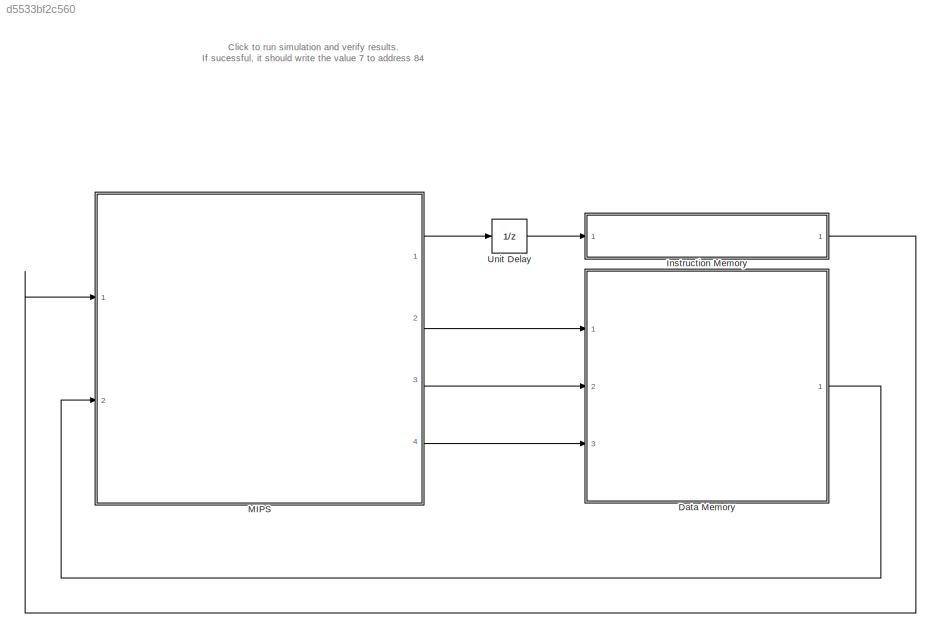
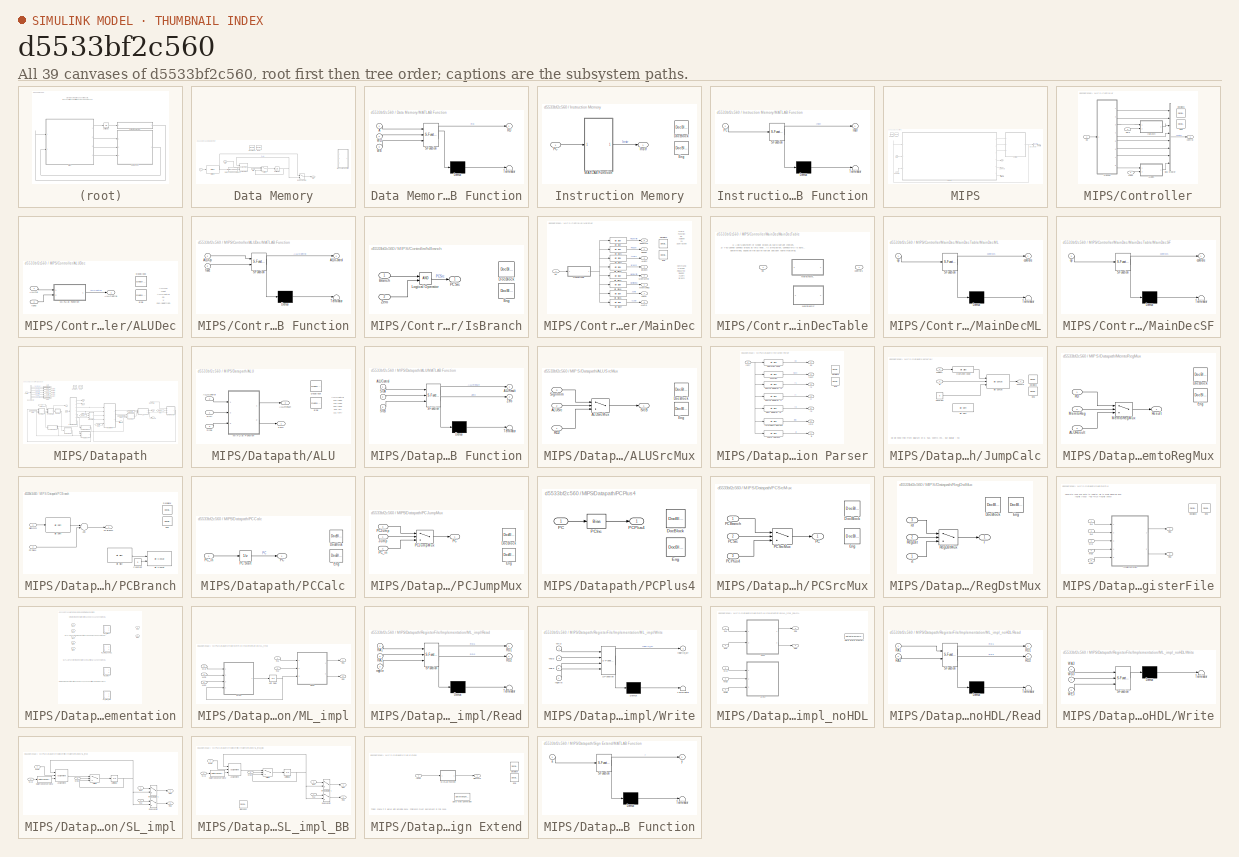
[diagram: thumbnail index - all 39 canvases of the model, root first then tree order]
MODEL slx_d5533bf2c560
KIND model
CONFIG AbsTol = auto
CONFIG FixedStep = 1
CONFIG MaxStep = auto
CONFIG MinStep = auto
CONFIG RelTol = 1e-3
CONFIG SampleTimeConstraint = Unconstrained
CONFIG Solver = FixedStepDiscrete
CONFIG SolverMode = Auto
CONFIG SolverName = FixedStepDiscrete
CONFIG StartTime = 0.0
CONFIG StopTime = 20
BLOCK [SubSystem] Data Memory
  Ports = [3, 1]
  RequestExecContextInheritance = off
  Variant = off
BLOCK [Inport] Data Memory/A
  IconDisplay = Port number
BLOCK [Assignment] Data Memory/Assignment
  IndexMode = Zero-based
  IndexOptions = Index vector (port)
  Indices = 1
  OutputSizes = 1
  Ports = [3, 1]
BLOCK [Reference] Data Memory/Bit Slice  REF=hdlsllib/HDL Operations/Bit Slice
  Ports = [1, 1]
  SourceBlock = hdlsllib/HDL Operations/Bit Slice
  SourceType = Bit Slice
BLOCK [DataTypeConversion] Data Memory/Data Type Conversion2
  OutDataTypeStr = uint8
  RndMeth = Floor
  SaturateOnIntegerOverflow = off
BLOCK [Reference] Data Memory/DocBlock  REF=simulink/Model-Wide
Utilities/DocBlock
  Ports = []
  SourceBlock = simulink/Model-Wide\nUtilities/DocBlock
  SourceType = DocBlock
  UserDataPersistent = on
BLOCK [Reference] Data Memory/Eng  REF=simulink/Model-Wide
Utilities/DocBlock
  Ports = []
  SourceBlock = simulink/Model-Wide\nUtilities/DocBlock
  SourceType = DocBlock
  UserDataPersistent = on
BLOCK [MultiPortSwitch] Data Memory/Index Vector1
  DataPortOrder = Zero-based contiguous
  InputSameDT = off
  Inputs = 1
  Ports = [2, 1]
  SaturateOnIntegerOverflow = off
  zeroidx = on
BLOCK [SubSystem] Data Memory/MATLAB Function
  Commented = on
  ErrorFcn = Stateflow.Translate.translate
  PermitHierarchicalResolution = ExplicitOnly
  Ports = [3, 1]
  RequestExecContextInheritance = off
  SFBlockType = MATLAB Function
  TreatAsAtomicUnit = on
  Variant = off
BLOCK [Demux] Data Memory/MATLAB Function/ Demux 
  Outputs = 1
  Ports = [1, 1]
BLOCK [S-Function] Data Memory/MATLAB Function/ SFunction 
  EnableBusSupport = on
  FunctionName = sf_sfun
  PortCounts = [3 2]
  Ports = [3, 2]
  SFunctionDeploymentMode = off
  Tag = Stateflow S-Function slmips 6
BLOCK [Terminator] Data Memory/MATLAB Function/ Terminator 
BLOCK [Inport] Data Memory/MATLAB Function/A
  IconDisplay = Port number
BLOCK [Outport] Data Memory/MATLAB Function/RD
  IconDisplay = Port number
BLOCK [Inport] Data Memory/MATLAB Function/WD
  IconDisplay = Port number
  Port = 2
BLOCK [Inport] Data Memory/MATLAB Function/WE
  IconDisplay = Port number
  Port = 3
BLOCK [Outport] Data Memory/RD
  IconDisplay = Port number
  OutDataTypeStr = fixdt(0,32,0)
BLOCK [Switch] Data Memory/Switch
  Criteria = u2 > Threshold
  InputSameDT = off
  SaturateOnIntegerOverflow = off
BLOCK [UnitDelay] Data Memory/Unit Delay
  InitialCondition = zeros(64,1)
  InputProcessing = Elements as channels (sample based)
  SampleTime = -1
BLOCK [Inport] Data Memory/WD
  IconDisplay = Port number
  Port = 2
BLOCK [Inport] Data Memory/WE
  IconDisplay = Port number
  Port = 3
BLOCK [SubSystem] Instruction Memory
  Ports = [1, 1]
  RequestExecContextInheritance = off
  Variant = off
BLOCK [Reference] Instruction Memory/DocBlock  REF=simulink/Model-Wide
Utilities/DocBlock
  Ports = []
  SourceBlock = simulink/Model-Wide\nUtilities/DocBlock
  SourceType = DocBlock
  UserDataPersistent = on
BLOCK [Reference] Instruction Memory/Eng  REF=simulink/Model-Wide
Utilities/DocBlock
  Ports = []
  SourceBlock = simulink/Model-Wide\nUtilities/DocBlock
  SourceType = DocBlock
  UserDataPersistent = on
BLOCK [Outport] Instruction Memory/Instr
  IconDisplay = Port number
  OutDataTypeStr = fixdt(0,32,0)
BLOCK [SubSystem] Instruction Memory/MATLAB Function
  ErrorFcn = Stateflow.Translate.translate
  PermitHierarchicalResolution = ExplicitOnly
  Ports = [1, 1]
  RequestExecContextInheritance = off
  SFBlockType = MATLAB Function
  TreatAsAtomicUnit = on
  Variant = off
BLOCK [Demux] Instruction Memory/MATLAB Function/ Demux 
  Outputs = 1
  Ports = [1, 1]
BLOCK [S-Function] Instruction Memory/MATLAB Function/ SFunction 
  EnableBusSupport = on
  FunctionName = sf_sfun
  PortCounts = [1 2]
  Ports = [1, 2]
  SFunctionDeploymentMode = off
  Tag = Stateflow S-Function slmips 7
BLOCK [Terminator] Instruction Memory/MATLAB Function/ Terminator 
BLOCK [Outport] Instruction Memory/MATLAB Function/Instr
  IconDisplay = Port number
BLOCK [Inport] Instruction Memory/MATLAB Function/PC
  IconDisplay = Port number
BLOCK [Inport] Instruction Memory/PC
  IconDisplay = Port number
BLOCK [SubSystem] MIPS
  Ports = [2, 4]
  RequestExecContextInheritance = off
  Variant = off
BLOCK [Outport] MIPS/ALUResult
  IconDisplay = Port number
  Port = 2
BLOCK [BusSelector] MIPS/Bus Selector
  OutputSignals = MemWrite
  Ports = [1, 1]
BLOCK [SubSystem] MIPS/Controller
  Ports = [3, 1]
  RequestExecContextInheritance = off
  Variant = off
BLOCK [SubSystem] MIPS/Controller/ALUDec
  Ports = [2, 1]
  RequestExecContextInheritance = off
  Variant = off
BLOCK [Outport] MIPS/Controller/ALUDec/ALUControl
  IconDisplay = Port number
  OutDataTypeStr = fixdt(0,3,0)
BLOCK [Inport] MIPS/Controller/ALUDec/ALUOp
  IconDisplay = Port number
BLOCK [Reference] MIPS/Controller/ALUDec/DocBlock  REF=simulink/Model-Wide
Utilities/DocBlock
  Ports = []
  SourceBlock = simulink/Model-Wide\nUtilities/DocBlock
  SourceType = DocBlock
  UserDataPersistent = on
BLOCK [Reference] MIPS/Controller/ALUDec/Eng  REF=simulink/Model-Wide
Utilities/DocBlock
  Ports = []
  SourceBlock = simulink/Model-Wide\nUtilities/DocBlock
  SourceType = DocBlock
  UserDataPersistent = on
BLOCK [SubSystem] MIPS/Controller/ALUDec/MATLAB Function
  ErrorFcn = Stateflow.Translate.translate
  PermitHierarchicalResolution = ExplicitOnly
  Ports = [2, 1]
  RequestExecContextInheritance = off
  SFBlockType = MATLAB Function
  TreatAsAtomicUnit = on
  Variant = off
BLOCK [Demux] MIPS/Controller/ALUDec/MATLAB Function/ Demux 
  Outputs = 1
  Ports = [1, 1]
BLOCK [S-Function] MIPS/Controller/ALUDec/MATLAB Function/ SFunction 
  EnableBusSupport = on
  FunctionName = sf_sfun
  PortCounts = [2 2]
  Ports = [2, 2]
  SFunctionDeploymentMode = off
  Tag = Stateflow S-Function slmips 4
BLOCK [Terminator] MIPS/Controller/ALUDec/MATLAB Function/ Terminator 
BLOCK [Outport] MIPS/Controller/ALUDec/MATLAB Function/ALUControl
  IconDisplay = Port number
BLOCK [Inport] MIPS/Controller/ALUDec/MATLAB Function/ALUOp
  IconDisplay = Port number
BLOCK [Inport] MIPS/Controller/ALUDec/MATLAB Function/funct
  IconDisplay = Port number
  Port = 2
BLOCK [Inport] MIPS/Controller/ALUDec/funct
  IconDisplay = Port number
  Port = 2
BLOCK [BusCreator] MIPS/Controller/Bus Creator
  DisplayOption = bar
  InheritFromInputs = on
  Inputs = 8
  Ports = [8, 1]
BLOCK [Reference] MIPS/Controller/DocBlock  REF=simulink/Model-Wide
Utilities/DocBlock
  Ports = []
  SourceBlock = simulink/Model-Wide\nUtilities/DocBlock
  SourceType = DocBlock
  UserDataPersistent = on
BLOCK [Reference] MIPS/Controller/Eng  REF=simulink/Model-Wide
Utilities/DocBlock
  Ports = []
  SourceBlock = simulink/Model-Wide\nUtilities/DocBlock
  SourceType = DocBlock
  UserDataPersistent = on
BLOCK [SubSystem] MIPS/Controller/IsBranch
  Ports = [2, 1]
  RequestExecContextInheritance = off
  Variant = off
BLOCK [Inport] MIPS/Controller/IsBranch/Branch
  IconDisplay = Port number
BLOCK [Reference] MIPS/Controller/IsBranch/DocBlock  REF=simulink/Model-Wide
Utilities/DocBlock
  Ports = []
  SourceBlock = simulink/Model-Wide\nUtilities/DocBlock
  SourceType = DocBlock
  UserDataPersistent = on
BLOCK [Reference] MIPS/Controller/IsBranch/Eng  REF=simulink/Model-Wide
Utilities/DocBlock
  Ports = []
  SourceBlock = simulink/Model-Wide\nUtilities/DocBlock
  SourceType = DocBlock
  UserDataPersistent = on
BLOCK [Logic] MIPS/Controller/IsBranch/Logical Operator
  AllPortsSameDT = off
  OutDataTypeStr = fixdt(0,1,0)
  Ports = [2, 1]
BLOCK [Outport] MIPS/Controller/IsBranch/PCSrc
  IconDisplay = Port number
BLOCK [Inport] MIPS/Controller/IsBranch/Zero
  IconDisplay = Port number
  Port = 2
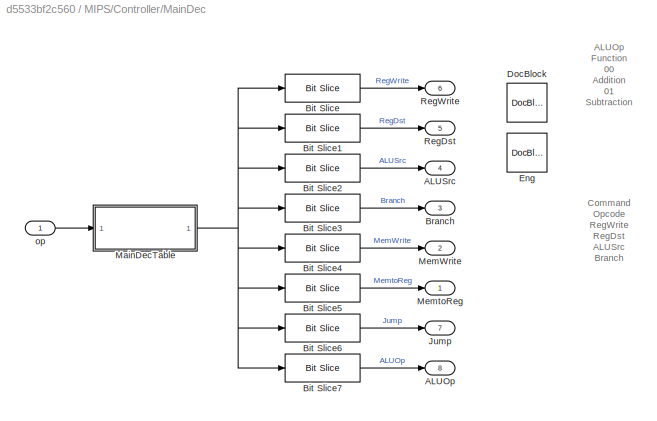
BLOCK [SubSystem] MIPS/Controller/MainDec
  Ports = [1, 8]
  RequestExecContextInheritance = off
  Variant = off
BLOCK [Outport] MIPS/Controller/MainDec/ALUOp
  IconDisplay = Port number
  OutDataTypeStr = fixdt(0,2,0)
  Port = 8
BLOCK [Outport] MIPS/Controller/MainDec/ALUSrc
  IconDisplay = Port number
  OutDataTypeStr = fixdt(0,1,0)
  Port = 4
BLOCK [Reference] MIPS/Controller/MainDec/Bit Slice  REF=hdlsllib/HDL Operations/Bit Slice
  Ports = [1, 1]
  SourceBlock = hdlsllib/HDL Operations/Bit Slice
  SourceType = Bit Slice
BLOCK [Reference] MIPS/Controller/MainDec/Bit Slice1  REF=hdlsllib/HDL Operations/Bit Slice
  Ports = [1, 1]
  SourceBlock = hdlsllib/HDL Operations/Bit Slice
  SourceType = Bit Slice
BLOCK [Reference] MIPS/Controller/MainDec/Bit Slice2  REF=hdlsllib/HDL Operations/Bit Slice
  Ports = [1, 1]
  SourceBlock = hdlsllib/HDL Operations/Bit Slice
  SourceType = Bit Slice
BLOCK [Reference] MIPS/Controller/MainDec/Bit Slice3  REF=hdlsllib/HDL Operations/Bit Slice
  Ports = [1, 1]
  SourceBlock = hdlsllib/HDL Operations/Bit Slice
  SourceType = Bit Slice
BLOCK [Reference] MIPS/Controller/MainDec/Bit Slice4  REF=hdlsllib/HDL Operations/Bit Slice
  Ports = [1, 1]
  SourceBlock = hdlsllib/HDL Operations/Bit Slice
  SourceType = Bit Slice
BLOCK [Reference] MIPS/Controller/MainDec/Bit Slice5  REF=hdlsllib/HDL Operations/Bit Slice
  Ports = [1, 1]
  SourceBlock = hdlsllib/HDL Operations/Bit Slice
  SourceType = Bit Slice
BLOCK [Reference] MIPS/Controller/MainDec/Bit Slice6  REF=hdlsllib/HDL Operations/Bit Slice
  Ports = [1, 1]
  SourceBlock = hdlsllib/HDL Operations/Bit Slice
  SourceType = Bit Slice
BLOCK [Reference] MIPS/Controller/MainDec/Bit Slice7  REF=hdlsllib/HDL Operations/Bit Slice
  Ports = [1, 1]
  SourceBlock = hdlsllib/HDL Operations/Bit Slice
  SourceType = Bit Slice
BLOCK [Outport] MIPS/Controller/MainDec/Branch
  IconDisplay = Port number
  OutDataTypeStr = fixdt(0,1,0)
  Port = 3
BLOCK [Reference] MIPS/Controller/MainDec/DocBlock  REF=simulink/Model-Wide
Utilities/DocBlock
  Ports = []
  SourceBlock = simulink/Model-Wide\nUtilities/DocBlock
  SourceType = DocBlock
  UserDataPersistent = on
BLOCK [Reference] MIPS/Controller/MainDec/Eng  REF=simulink/Model-Wide
Utilities/DocBlock
  Ports = []
  SourceBlock = simulink/Model-Wide\nUtilities/DocBlock
  SourceType = DocBlock
  UserDataPersistent = on
BLOCK [Outport] MIPS/Controller/MainDec/Jump
  IconDisplay = Port number
  OutDataTypeStr = fixdt(0,1,0)
  Port = 7
BLOCK [SubSystem] MIPS/Controller/MainDec/MainDecTable
  OverrideUsingVariant = MainDecSF
  Ports = [1, 1]
  RequestExecContextInheritance = off
  Variant = on
BLOCK [SubSystem] MIPS/Controller/MainDec/MainDecTable/MainDecML
  ErrorFcn = Stateflow.Translate.translate
  PermitHierarchicalResolution = ExplicitOnly
  Ports = [1, 1]
  RequestExecContextInheritance = off
  SFBlockType = MATLAB Function
  TreatAsAtomicUnit = on
  Variant = off
  VariantControl = MainDecML
BLOCK [Demux] MIPS/Controller/MainDec/MainDecTable/MainDecML/ Demux 
  Outputs = 1
  Ports = [1, 1]
BLOCK [S-Function] MIPS/Controller/MainDec/MainDecTable/MainDecML/ SFunction 
  EnableBusSupport = on
  FunctionName = sf_sfun
  PortCounts = [1 2]
  Ports = [1, 2]
  SFunctionDeploymentMode = off
  Tag = Stateflow S-Function slmips 5
BLOCK [Terminator] MIPS/Controller/MainDec/MainDecTable/MainDecML/ Terminator 
BLOCK [Outport] MIPS/Controller/MainDec/MainDecTable/MainDecML/controls
  IconDisplay = Port number
BLOCK [Inport] MIPS/Controller/MainDec/MainDecTable/MainDecML/op
  IconDisplay = Port number
BLOCK [SubSystem] MIPS/Controller/MainDec/MainDecTable/MainDecSF
  ErrorFcn = Stateflow.Translate.translate
  PermitHierarchicalResolution = ExplicitOnly
  Ports = [1, 1]
  RequestExecContextInheritance = off
  SFBlockType = Chart
  TreatAsAtomicUnit = on
  Variant = off
  VariantControl = MainDecSF
BLOCK [Demux] MIPS/Controller/MainDec/MainDecTable/MainDecSF/ Demux 
  Outputs = 1
  Ports = [1, 1]
BLOCK [S-Function] MIPS/Controller/MainDec/MainDecTable/MainDecSF/ SFunction 
  EnableBusSupport = on
  FunctionName = sf_sfun
  PortCounts = [1 2]
  Ports = [1, 2]
  SFunctionDeploymentMode = off
  Tag = Stateflow S-Function slmips 11
BLOCK [Terminator] MIPS/Controller/MainDec/MainDecTable/MainDecSF/ Terminator 
BLOCK [Outport] MIPS/Controller/MainDec/MainDecTable/MainDecSF/controls
  IconDisplay = Port number
BLOCK [Inport] MIPS/Controller/MainDec/MainDecTable/MainDecSF/op
  IconDisplay = Port number
BLOCK [Outport] MIPS/Controller/MainDec/MainDecTable/controls
  IconDisplay = Port number
BLOCK [Inport] MIPS/Controller/MainDec/MainDecTable/op
  IconDisplay = Port number
BLOCK [Outport] MIPS/Controller/MainDec/MemWrite
  IconDisplay = Port number
  OutDataTypeStr = fixdt(0,1,0)
  Port = 2
BLOCK [Outport] MIPS/Controller/MainDec/MemtoReg
  IconDisplay = Port number
  OutDataTypeStr = fixdt(0,1,0)
BLOCK [Outport] MIPS/Controller/MainDec/RegDst
  IconDisplay = Port number
  OutDataTypeStr = fixdt(0,1,0)
  Port = 5
BLOCK [Outport] MIPS/Controller/MainDec/RegWrite
  IconDisplay = Port number
  OutDataTypeStr = fixdt(0,1,0)
  Port = 6
BLOCK [Inport] MIPS/Controller/MainDec/op
  IconDisplay = Port number
BLOCK [Inport] MIPS/Controller/Zero
  IconDisplay = Port number
  Port = 3
BLOCK [Outport] MIPS/Controller/control
  IconDisplay = Port number
BLOCK [Inport] MIPS/Controller/funct
  IconDisplay = Port number
  Port = 2
BLOCK [Inport] MIPS/Controller/op
  IconDisplay = Port number
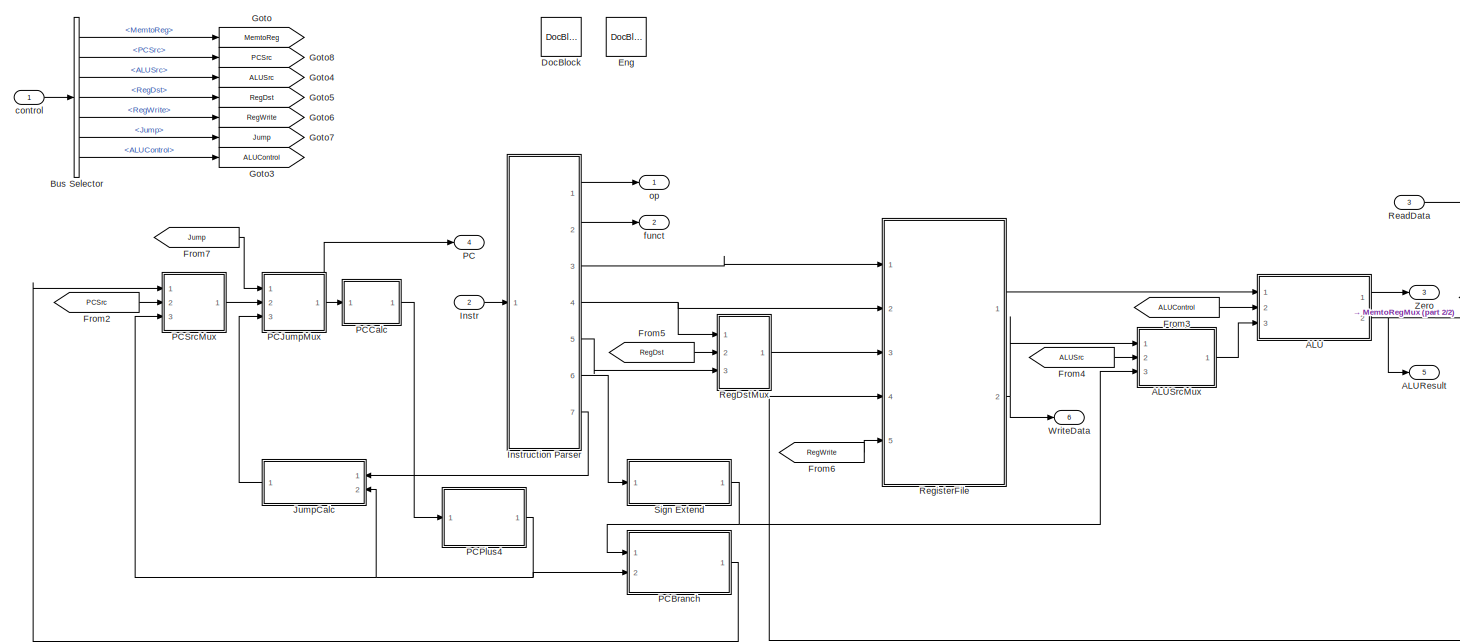
[diagram: MIPS/Datapath - part 1/2, most of the canvas]
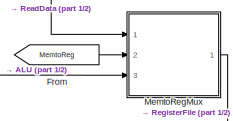
[diagram: MIPS/Datapath - part 2/2, middle right region]
BLOCK [SubSystem] MIPS/Datapath
  Ports = [3, 6]
  RequestExecContextInheritance = off
  Variant = off
BLOCK [SubSystem] MIPS/Datapath/ALU
  Ports = [3, 2]
  RequestExecContextInheritance = off
  Variant = off
BLOCK [Inport] MIPS/Datapath/ALU/ALUControl
  IconDisplay = Port number
  Port = 2
BLOCK [Outport] MIPS/Datapath/ALU/ALUResult
  IconDisplay = Port number
  OutDataTypeStr = fixdt(0,32,0)
  Port = 2
BLOCK [Reference] MIPS/Datapath/ALU/DocBlock  REF=simulink/Model-Wide
Utilities/DocBlock
  Ports = []
  SourceBlock = simulink/Model-Wide\nUtilities/DocBlock
  SourceType = DocBlock
  UserDataPersistent = on
BLOCK [Reference] MIPS/Datapath/ALU/Eng  REF=simulink/Model-Wide
Utilities/DocBlock
  Ports = []
  SourceBlock = simulink/Model-Wide\nUtilities/DocBlock
  SourceType = DocBlock
  UserDataPersistent = on
BLOCK [SubSystem] MIPS/Datapath/ALU/MATLAB Function
  ErrorFcn = Stateflow.Translate.translate
  PermitHierarchicalResolution = ExplicitOnly
  Ports = [3, 2]
  RequestExecContextInheritance = off
  SFBlockType = MATLAB Function
  TreatAsAtomicUnit = on
  Variant = off
BLOCK [Demux] MIPS/Datapath/ALU/MATLAB Function/ Demux 
  Outputs = 1
  Ports = [1, 1]
BLOCK [S-Function] MIPS/Datapath/ALU/MATLAB Function/ SFunction 
  EnableBusSupport = on
  FunctionName = sf_sfun
  PortCounts = [3 3]
  Ports = [3, 3]
  SFunctionDeploymentMode = off
  Tag = Stateflow S-Function slmips 1
BLOCK [Terminator] MIPS/Datapath/ALU/MATLAB Function/ Terminator 
BLOCK [Inport] MIPS/Datapath/ALU/MATLAB Function/ALUControl
  IconDisplay = Port number
BLOCK [Outport] MIPS/Datapath/ALU/MATLAB Function/ALUResult
  IconDisplay = Port number
BLOCK [Inport] MIPS/Datapath/ALU/MATLAB Function/SrcA
  IconDisplay = Port number
  Port = 2
BLOCK [Inport] MIPS/Datapath/ALU/MATLAB Function/SrcB
  IconDisplay = Port number
  Port = 3
BLOCK [Outport] MIPS/Datapath/ALU/MATLAB Function/Zero
  IconDisplay = Port number
  Port = 2
BLOCK [Inport] MIPS/Datapath/ALU/SrcA
  IconDisplay = Port number
BLOCK [Inport] MIPS/Datapath/ALU/SrcB
  IconDisplay = Port number
  Port = 3
BLOCK [Outport] MIPS/Datapath/ALU/Zero
  IconDisplay = Port number
  OutDataTypeStr = fixdt(0,1,0)
BLOCK [Outport] MIPS/Datapath/ALUResult
  IconDisplay = Port number
  Port = 5
BLOCK [SubSystem] MIPS/Datapath/ALUSrcMux
  Ports = [3, 1]
  RequestExecContextInheritance = off
  Variant = off
BLOCK [Inport] MIPS/Datapath/ALUSrcMux/ALUSrc
  IconDisplay = Port number
  Port = 2
BLOCK [Switch] MIPS/Datapath/ALUSrcMux/ALUSrcMux
  Criteria = u2 > Threshold
  InputSameDT = off
  SaturateOnIntegerOverflow = off
BLOCK [Reference] MIPS/Datapath/ALUSrcMux/DocBlock  REF=simulink/Model-Wide
Utilities/DocBlock
  Ports = []
  SourceBlock = simulink/Model-Wide\nUtilities/DocBlock
  SourceType = DocBlock
  UserDataPersistent = on
BLOCK [Reference] MIPS/Datapath/ALUSrcMux/Eng  REF=simulink/Model-Wide
Utilities/DocBlock
  Ports = []
  SourceBlock = simulink/Model-Wide\nUtilities/DocBlock
  SourceType = DocBlock
  UserDataPersistent = on
BLOCK [Inport] MIPS/Datapath/ALUSrcMux/RD2
  IconDisplay = Port number
BLOCK [Inport] MIPS/Datapath/ALUSrcMux/SignImm
  IconDisplay = Port number
  Port = 3
BLOCK [Outport] MIPS/Datapath/ALUSrcMux/SrcB
  IconDisplay = Port number
BLOCK [BusSelector] MIPS/Datapath/Bus Selector
  OutputSignals = MemtoReg,PCSrc,ALUSrc,RegDst,RegWrite,Jump,ALUControl
  Ports = [1, 7]
BLOCK [Reference] MIPS/Datapath/DocBlock  REF=simulink/Model-Wide
Utilities/DocBlock
  Ports = []
  SourceBlock = simulink/Model-Wide\nUtilities/DocBlock
  SourceType = DocBlock
  UserDataPersistent = on
BLOCK [Reference] MIPS/Datapath/Eng  REF=simulink/Model-Wide
Utilities/DocBlock
  Ports = []
  SourceBlock = simulink/Model-Wide\nUtilities/DocBlock
  SourceType = DocBlock
  UserDataPersistent = on
BLOCK [From] MIPS/Datapath/From
  GotoTag = MemtoReg
BLOCK [From] MIPS/Datapath/From2
  GotoTag = PCSrc
BLOCK [From] MIPS/Datapath/From3
  GotoTag = ALUControl
BLOCK [From] MIPS/Datapath/From4
  GotoTag = ALUSrc
BLOCK [From] MIPS/Datapath/From5
  GotoTag = RegDst
BLOCK [From] MIPS/Datapath/From6
  GotoTag = RegWrite
BLOCK [From] MIPS/Datapath/From7
  GotoTag = Jump
BLOCK [Goto] MIPS/Datapath/Goto
  GotoTag = MemtoReg
BLOCK [Goto] MIPS/Datapath/Goto3
  GotoTag = ALUControl
BLOCK [Goto] MIPS/Datapath/Goto4
  GotoTag = ALUSrc
BLOCK [Goto] MIPS/Datapath/Goto5
  GotoTag = RegDst
BLOCK [Goto] MIPS/Datapath/Goto6
  GotoTag = RegWrite
BLOCK [Goto] MIPS/Datapath/Goto7
  GotoTag = Jump
BLOCK [Goto] MIPS/Datapath/Goto8
  GotoTag = PCSrc
BLOCK [Inport] MIPS/Datapath/Instr
  IconDisplay = Port number
  Port = 2
BLOCK [SubSystem] MIPS/Datapath/Instruction Parser
  Ports = [1, 7]
  RequestExecContextInheritance = off
  Variant = off
BLOCK [Reference] MIPS/Datapath/Instruction Parser/Dest Register rd  REF=hdlsllib/HDL Operations/Bit Slice
  Ports = [1, 1]
  SourceBlock = hdlsllib/HDL Operations/Bit Slice
  SourceType = Bit Slice
BLOCK [Reference] MIPS/Datapath/Instruction Parser/DocBlock  REF=simulink/Model-Wide
Utilities/DocBlock
  Ports = []
  SourceBlock = simulink/Model-Wide\nUtilities/DocBlock
  SourceType = DocBlock
  UserDataPersistent = on
BLOCK [Reference] MIPS/Datapath/Instruction Parser/Eng  REF=simulink/Model-Wide
Utilities/DocBlock
  Ports = []
  SourceBlock = simulink/Model-Wide\nUtilities/DocBlock
  SourceType = DocBlock
  UserDataPersistent = on
BLOCK [Reference] MIPS/Datapath/Instruction Parser/Function  REF=hdlsllib/HDL Operations/Bit Slice
  Ports = [1, 1]
  SourceBlock = hdlsllib/HDL Operations/Bit Slice
  SourceType = Bit Slice
BLOCK [Outport] MIPS/Datapath/Instruction Parser/Imm
  IconDisplay = Port number
  Port = 6
BLOCK [Reference] MIPS/Datapath/Instruction Parser/Immediate Operand  REF=hdlsllib/HDL Operations/Bit Slice
  Ports = [1, 1]
  SourceBlock = hdlsllib/HDL Operations/Bit Slice
  SourceType = Bit Slice
BLOCK [Inport] MIPS/Datapath/Instruction Parser/Instr
  IconDisplay = Port number
BLOCK [Reference] MIPS/Datapath/Instruction Parser/Jump Address  REF=hdlsllib/HDL Operations/Bit Slice
  Ports = [1, 1]
  SourceBlock = hdlsllib/HDL Operations/Bit Slice
  SourceType = Bit Slice
BLOCK [Reference] MIPS/Datapath/Instruction Parser/Operation Code  REF=hdlsllib/HDL Operations/Bit Slice
  Ports = [1, 1]
  SourceBlock = hdlsllib/HDL Operations/Bit Slice
  SourceType = Bit Slice
BLOCK [Reference] MIPS/Datapath/Instruction Parser/Source Register rs  REF=hdlsllib/HDL Operations/Bit Slice
  Ports = [1, 1]
  SourceBlock = hdlsllib/HDL Operations/Bit Slice
  SourceType = Bit Slice
BLOCK [Reference] MIPS/Datapath/Instruction Parser/Source Register rt  REF=hdlsllib/HDL Operations/Bit Slice
  Ports = [1, 1]
  SourceBlock = hdlsllib/HDL Operations/Bit Slice
  SourceType = Bit Slice
BLOCK [Outport] MIPS/Datapath/Instruction Parser/funct
  IconDisplay = Port number
  Port = 2
BLOCK [Outport] MIPS/Datapath/Instruction Parser/ja
  IconDisplay = Port number
  Port = 7
BLOCK [Outport] MIPS/Datapath/Instruction Parser/op
  IconDisplay = Port number
BLOCK [Outport] MIPS/Datapath/Instruction Parser/rd
  IconDisplay = Port number
  Port = 5
BLOCK [Outport] MIPS/Datapath/Instruction Parser/rs
  IconDisplay = Port number
  Port = 3
BLOCK [Outport] MIPS/Datapath/Instruction Parser/rt
  IconDisplay = Port number
  Port = 4
BLOCK [SubSystem] MIPS/Datapath/JumpCalc
  Ports = [2, 1]
  RequestExecContextInheritance = off
  Variant = off
BLOCK [Reference] MIPS/Datapath/JumpCalc/Bit Concat  REF=hdlsllib/HDL Operations/Bit Concat
  Ports = [3, 1]
  SourceBlock = hdlsllib/HDL Operations/Bit Concat
  SourceType = Bit Concat
BLOCK [Reference] MIPS/Datapath/JumpCalc/Bit Shift  REF=hdlsllib/HDL Operations/Bit Shift
  Commented = through
  Ports = [1, 1]
  SourceBlock = hdlsllib/HDL Operations/Bit Shift
  SourceType = Bit Shift
BLOCK [Constant] MIPS/Datapath/JumpCalc/Constant
  OutDataTypeStr = fixdt(0,2,0)
  Value = 0
BLOCK [Reference] MIPS/Datapath/JumpCalc/DocBlock  REF=simulink/Model-Wide
Utilities/DocBlock
  Ports = []
  SourceBlock = simulink/Model-Wide\nUtilities/DocBlock
  SourceType = DocBlock
  UserDataPersistent = on
BLOCK [Reference] MIPS/Datapath/JumpCalc/Eng  REF=simulink/Model-Wide
Utilities/DocBlock
  Ports = []
  SourceBlock = simulink/Model-Wide\nUtilities/DocBlock
  SourceType = DocBlock
  UserDataPersistent = on
BLOCK [Reference] MIPS/Datapath/JumpCalc/Operation Code  REF=hdlsllib/HDL Operations/Bit Slice
  Ports = [1, 1]
  SourceBlock = hdlsllib/HDL Operations/Bit Slice
  SourceType = Bit Slice
BLOCK [Outport] MIPS/Datapath/JumpCalc/PCJump
  IconDisplay = Port number
BLOCK [Inport] MIPS/Datapath/JumpCalc/PCPlus4
  IconDisplay = Port number
  Port = 2
BLOCK [Inport] MIPS/Datapath/JumpCalc/ja
  IconDisplay = Port number
BLOCK [SubSystem] MIPS/Datapath/MemtoRegMux
  Ports = [3, 1]
  RequestExecContextInheritance = off
  Variant = off
BLOCK [Inport] MIPS/Datapath/MemtoRegMux/ALUResult
  IconDisplay = Port number
  Port = 3
BLOCK [Reference] MIPS/Datapath/MemtoRegMux/DocBlock  REF=simulink/Model-Wide
Utilities/DocBlock
  Ports = []
  SourceBlock = simulink/Model-Wide\nUtilities/DocBlock
  SourceType = DocBlock
  UserDataPersistent = on
BLOCK [Reference] MIPS/Datapath/MemtoRegMux/Eng  REF=simulink/Model-Wide
Utilities/DocBlock
  Ports = []
  SourceBlock = simulink/Model-Wide\nUtilities/DocBlock
  SourceType = DocBlock
  UserDataPersistent = on
BLOCK [Inport] MIPS/Datapath/MemtoRegMux/MemtoReg
  IconDisplay = Port number
  Port = 2
BLOCK [Switch] MIPS/Datapath/MemtoRegMux/MemtoRegMux
  Criteria = u2 > Threshold
  InputSameDT = off
  SaturateOnIntegerOverflow = off
BLOCK [Inport] MIPS/Datapath/MemtoRegMux/RD
  IconDisplay = Port number
BLOCK [Outport] MIPS/Datapath/MemtoRegMux/Result
  IconDisplay = Port number
BLOCK [Outport] MIPS/Datapath/PC
  IconDisplay = Port number
  Port = 4
BLOCK [SubSystem] MIPS/Datapath/PCBranch
  Ports = [2, 1]
  RequestExecContextInheritance = off
  Variant = off
BLOCK [Sum] MIPS/Datapath/PCBranch/Add
  AccumDataTypeStr = fixdt(0,32,0)
  InputSameDT = off
  OutDataTypeStr = fixdt(0,32,0)
  Ports = [2, 1]
  SaturateOnIntegerOverflow = off
BLOCK [Reference] MIPS/Datapath/PCBranch/Bit Concat  REF=hdlsllib/HDL Operations/Bit Concat
  Commented = on
  Ports = [2, 1]
  SourceBlock = hdlsllib/HDL Operations/Bit Concat
  SourceType = Bit Concat
BLOCK [Reference] MIPS/Datapath/PCBranch/Bit Shift  REF=hdlsllib/HDL Operations/Bit Shift
  Ports = [1, 1]
  SourceBlock = hdlsllib/HDL Operations/Bit Shift
  SourceType = Bit Shift
BLOCK [Reference] MIPS/Datapath/PCBranch/Bit Slice  REF=hdlsllib/HDL Operations/Bit Slice
  Commented = on
  Ports = [1, 1]
  SourceBlock = hdlsllib/HDL Operations/Bit Slice
  SourceType = Bit Slice
BLOCK [Constant] MIPS/Datapath/PCBranch/Constant
  Commented = on
  OutDataTypeStr = fixdt(0,2,0)
  Value = 0
BLOCK [Reference] MIPS/Datapath/PCBranch/DocBlock  REF=simulink/Model-Wide
Utilities/DocBlock
  Ports = []
  SourceBlock = simulink/Model-Wide\nUtilities/DocBlock
  SourceType = DocBlock
  UserDataPersistent = on
BLOCK [Reference] MIPS/Datapath/PCBranch/Eng  REF=simulink/Model-Wide
Utilities/DocBlock
  Ports = []
  SourceBlock = simulink/Model-Wide\nUtilities/DocBlock
  SourceType = DocBlock
  UserDataPersistent = on
BLOCK [Outport] MIPS/Datapath/PCBranch/PCBranch
  IconDisplay = Port number
BLOCK [Inport] MIPS/Datapath/PCBranch/PCPlus4
  IconDisplay = Port number
  Port = 2
BLOCK [Inport] MIPS/Datapath/PCBranch/SignImm
  IconDisplay = Port number
BLOCK [SubSystem] MIPS/Datapath/PCCalc
  Ports = [1, 1]
  RequestExecContextInheritance = off
  Variant = off
BLOCK [Reference] MIPS/Datapath/PCCalc/DocBlock  REF=simulink/Model-Wide
Utilities/DocBlock
  Ports = []
  SourceBlock = simulink/Model-Wide\nUtilities/DocBlock
  SourceType = DocBlock
  UserDataPersistent = on
BLOCK [Reference] MIPS/Datapath/PCCalc/Eng  REF=simulink/Model-Wide
Utilities/DocBlock
  Ports = []
  SourceBlock = simulink/Model-Wide\nUtilities/DocBlock
  SourceType = DocBlock
  UserDataPersistent = on
BLOCK [Outport] MIPS/Datapath/PCCalc/PC
  IconDisplay = Port number
  OutDataTypeStr = fixdt(0,32,0)
BLOCK [UnitDelay] MIPS/Datapath/PCCalc/PC Start
  Description = Начальное значение счетчика команд.
  InputProcessing = Elements as channels (sample based)
  SampleTime = -1
BLOCK [Inport] MIPS/Datapath/PCCalc/PC_in
  IconDisplay = Port number
BLOCK [SubSystem] MIPS/Datapath/PCJumpMux
  Ports = [3, 1]
  RequestExecContextInheritance = off
  Variant = off
BLOCK [Reference] MIPS/Datapath/PCJumpMux/DocBlock  REF=simulink/Model-Wide
Utilities/DocBlock
  Ports = []
  SourceBlock = simulink/Model-Wide\nUtilities/DocBlock
  SourceType = DocBlock
  UserDataPersistent = on
BLOCK [Reference] MIPS/Datapath/PCJumpMux/Eng  REF=simulink/Model-Wide
Utilities/DocBlock
  Ports = []
  SourceBlock = simulink/Model-Wide\nUtilities/DocBlock
  SourceType = DocBlock
  UserDataPersistent = on
BLOCK [Inport] MIPS/Datapath/PCJumpMux/Jump
  IconDisplay = Port number
BLOCK [Outport] MIPS/Datapath/PCJumpMux/PC
  IconDisplay = Port number
BLOCK [Inport] MIPS/Datapath/PCJumpMux/PCJump
  IconDisplay = Port number
  Port = 3
BLOCK [Switch] MIPS/Datapath/PCJumpMux/PCJumpMux
  Criteria = u2 > Threshold
  InputSameDT = off
  SaturateOnIntegerOverflow = off
BLOCK [Inport] MIPS/Datapath/PCJumpMux/PC_in
  IconDisplay = Port number
  Port = 2
BLOCK [SubSystem] MIPS/Datapath/PCPlus4
  Ports = [1, 1]
  RequestExecContextInheritance = off
  Variant = off
BLOCK [Reference] MIPS/Datapath/PCPlus4/DocBlock  REF=simulink/Model-Wide
Utilities/DocBlock
  Ports = []
  SourceBlock = simulink/Model-Wide\nUtilities/DocBlock
  SourceType = DocBlock
  UserDataPersistent = on
BLOCK [Reference] MIPS/Datapath/PCPlus4/Eng  REF=simulink/Model-Wide
Utilities/DocBlock
  Ports = []
  SourceBlock = simulink/Model-Wide\nUtilities/DocBlock
  SourceType = DocBlock
  UserDataPersistent = on
BLOCK [Inport] MIPS/Datapath/PCPlus4/PC
  IconDisplay = Port number
BLOCK [Bias] MIPS/Datapath/PCPlus4/PCInc
  Bias = 4
  SaturateOnIntegerOverflow = off
BLOCK [Outport] MIPS/Datapath/PCPlus4/PCPlus4
  IconDisplay = Port number
BLOCK [SubSystem] MIPS/Datapath/PCSrcMux
  Ports = [3, 1]
  RequestExecContextInheritance = off
  Variant = off
BLOCK [Reference] MIPS/Datapath/PCSrcMux/DocBlock  REF=simulink/Model-Wide
Utilities/DocBlock
  Ports = []
  SourceBlock = simulink/Model-Wide\nUtilities/DocBlock
  SourceType = DocBlock
  UserDataPersistent = on
BLOCK [Reference] MIPS/Datapath/PCSrcMux/Eng  REF=simulink/Model-Wide
Utilities/DocBlock
  Ports = []
  SourceBlock = simulink/Model-Wide\nUtilities/DocBlock
  SourceType = DocBlock
  UserDataPersistent = on
BLOCK [Outport] MIPS/Datapath/PCSrcMux/PC
  IconDisplay = Port number
BLOCK [Inport] MIPS/Datapath/PCSrcMux/PCBranch
  IconDisplay = Port number
BLOCK [Inport] MIPS/Datapath/PCSrcMux/PCPlus4
  IconDisplay = Port number
  Port = 3
BLOCK [Inport] MIPS/Datapath/PCSrcMux/PCSrc
  IconDisplay = Port number
  Port = 2
BLOCK [Switch] MIPS/Datapath/PCSrcMux/PCSrcMux
  Criteria = u2 > Threshold
  InputSameDT = off
  SaturateOnIntegerOverflow = off
BLOCK [Inport] MIPS/Datapath/ReadData
  IconDisplay = Port number
  Port = 3
BLOCK [SubSystem] MIPS/Datapath/RegDstMux
  Ports = [3, 1]
  RequestExecContextInheritance = off
  Variant = off
BLOCK [Reference] MIPS/Datapath/RegDstMux/DocBlock  REF=simulink/Model-Wide
Utilities/DocBlock
  Ports = []
  SourceBlock = simulink/Model-Wide\nUtilities/DocBlock
  SourceType = DocBlock
  UserDataPersistent = on
BLOCK [Reference] MIPS/Datapath/RegDstMux/Eng  REF=simulink/Model-Wide
Utilities/DocBlock
  Ports = []
  SourceBlock = simulink/Model-Wide\nUtilities/DocBlock
  SourceType = DocBlock
  UserDataPersistent = on
BLOCK [Inport] MIPS/Datapath/RegDstMux/RegDst
  IconDisplay = Port number
  Port = 2
BLOCK [Switch] MIPS/Datapath/RegDstMux/RegDstMux
  Criteria = u2 > Threshold
  InputSameDT = off
  SaturateOnIntegerOverflow = off
BLOCK [Outport] MIPS/Datapath/RegDstMux/r
  IconDisplay = Port number
BLOCK [Inport] MIPS/Datapath/RegDstMux/rd
  IconDisplay = Port number
  Port = 3
BLOCK [Inport] MIPS/Datapath/RegDstMux/rt
  IconDisplay = Port number
BLOCK [SubSystem] MIPS/Datapath/RegisterFile
  Ports = [5, 2]
  RequestExecContextInheritance = off
  Variant = off
BLOCK [Reference] MIPS/Datapath/RegisterFile/DocBlock  REF=simulink/Model-Wide
Utilities/DocBlock
  Ports = []
  SourceBlock = simulink/Model-Wide\nUtilities/DocBlock
  SourceType = DocBlock
  UserDataPersistent = on
BLOCK [Reference] MIPS/Datapath/RegisterFile/Eng  REF=simulink/Model-Wide
Utilities/DocBlock
  Ports = []
  SourceBlock = simulink/Model-Wide\nUtilities/DocBlock
  SourceType = DocBlock
  UserDataPersistent = on
BLOCK [SubSystem] MIPS/Datapath/RegisterFile/Implementation
  OverrideUsingVariant = SL_impl_BB
  Ports = [5, 2]
  RequestExecContextInheritance = off
  Variant = on
BLOCK [SubSystem] MIPS/Datapath/RegisterFile/Implementation/ML_impl
  Ports = [5, 2]
  RequestExecContextInheritance = off
  Variant = off
  VariantControl = ML_impl
BLOCK [Inport] MIPS/Datapath/RegisterFile/Implementation/ML_impl/RA1
  IconDisplay = Port number
BLOCK [Inport] MIPS/Datapath/RegisterFile/Implementation/ML_impl/RA2
  IconDisplay = Port number
  Port = 2
BLOCK [Outport] MIPS/Datapath/RegisterFile/Implementation/ML_impl/RD1
  IconDisplay = Port number
  OutDataTypeStr = fixdt(0,32,0)
BLOCK [Outport] MIPS/Datapath/RegisterFile/Implementation/ML_impl/RD2
  IconDisplay = Port number
  OutDataTypeStr = fixdt(0,32,0)
  Port = 2
BLOCK [SubSystem] MIPS/Datapath/RegisterFile/Implementation/ML_impl/Read
  ErrorFcn = Stateflow.Translate.translate
  PermitHierarchicalResolution = ExplicitOnly
  Ports = [3, 2]
  RequestExecContextInheritance = off
  SFBlockType = MATLAB Function
  TreatAsAtomicUnit = on
  Variant = off
BLOCK [Demux] MIPS/Datapath/RegisterFile/Implementation/ML_impl/Read/ Demux 
  Outputs = 1
  Ports = [1, 1]
BLOCK [S-Function] MIPS/Datapath/RegisterFile/Implementation/ML_impl/Read/ SFunction 
  EnableBusSupport = on
  FunctionName = sf_sfun
  PortCounts = [3 3]
  Ports = [3, 3]
  SFunctionDeploymentMode = off
  Tag = Stateflow S-Function slmips 9
BLOCK [Terminator] MIPS/Datapath/RegisterFile/Implementation/ML_impl/Read/ Terminator 
BLOCK [Inport] MIPS/Datapath/RegisterFile/Implementation/ML_impl/Read/RA1
  IconDisplay = Port number
BLOCK [Inport] MIPS/Datapath/RegisterFile/Implementation/ML_impl/Read/RA2
  IconDisplay = Port number
  Port = 2
BLOCK [Outport] MIPS/Datapath/RegisterFile/Implementation/ML_impl/Read/RD1
  IconDisplay = Port number
BLOCK [Outport] MIPS/Datapath/RegisterFile/Implementation/ML_impl/Read/RD2
  IconDisplay = Port number
  Port = 2
BLOCK [Inport] MIPS/Datapath/RegisterFile/Implementation/ML_impl/Read/regfile
  IconDisplay = Port number
  Port = 3
BLOCK [UnitDelay] MIPS/Datapath/RegisterFile/Implementation/ML_impl/Unit Delay
  InitialCondition = zeros(32,1)
  InputProcessing = Elements as channels (sample based)
  SampleTime = -1
BLOCK [Inport] MIPS/Datapath/RegisterFile/Implementation/ML_impl/WA3
  IconDisplay = Port number
  Port = 3
BLOCK [Inport] MIPS/Datapath/RegisterFile/Implementation/ML_impl/WD3
  IconDisplay = Port number
  Port = 4
BLOCK [Inport] MIPS/Datapath/RegisterFile/Implementation/ML_impl/WE3
  IconDisplay = Port number
  Port = 5
BLOCK [SubSystem] MIPS/Datapath/RegisterFile/Implementation/ML_impl/Write
  ErrorFcn = Stateflow.Translate.translate
  PermitHierarchicalResolution = ExplicitOnly
  Ports = [4, 1]
  RequestExecContextInheritance = off
  SFBlockType = MATLAB Function
  TreatAsAtomicUnit = on
  Variant = off
BLOCK [Demux] MIPS/Datapath/RegisterFile/Implementation/ML_impl/Write/ Demux 
  Outputs = 1
  Ports = [1, 1]
BLOCK [S-Function] MIPS/Datapath/RegisterFile/Implementation/ML_impl/Write/ SFunction 
  EnableBusSupport = on
  FunctionName = sf_sfun
  PortCounts = [4 2]
  Ports = [4, 2]
  SFunctionDeploymentMode = off
  Tag = Stateflow S-Function slmips 10
BLOCK [Terminator] MIPS/Datapath/RegisterFile/Implementation/ML_impl/Write/ Terminator 
BLOCK [Inport] MIPS/Datapath/RegisterFile/Implementation/ML_impl/Write/WA3
  IconDisplay = Port number
BLOCK [Inport] MIPS/Datapath/RegisterFile/Implementation/ML_impl/Write/WD3
  IconDisplay = Port number
  Port = 2
BLOCK [Inport] MIPS/Datapath/RegisterFile/Implementation/ML_impl/Write/WE3
  IconDisplay = Port number
  Port = 3
BLOCK [Inport] MIPS/Datapath/RegisterFile/Implementation/ML_impl/Write/regfile
  IconDisplay = Port number
  Port = 4
BLOCK [Outport] MIPS/Datapath/RegisterFile/Implementation/ML_impl/Write/regfile_wr
  IconDisplay = Port number
BLOCK [SubSystem] MIPS/Datapath/RegisterFile/Implementation/ML_impl_noHDL
  Ports = [5, 2]
  RequestExecContextInheritance = off
  Variant = off
  VariantControl = ML_impl_noHDL
BLOCK [DataStoreMemory] MIPS/Datapath/RegisterFile/Implementation/ML_impl_noHDL/Data Store Memory
  DataStoreName = regfile
  InitialValue = zeros(32,1)
  OutDataTypeStr = fixdt(0,32,0)
  SignalType = real
  WriteAfterWriteMsg = warning
BLOCK [Inport] MIPS/Datapath/RegisterFile/Implementation/ML_impl_noHDL/RA1
  IconDisplay = Port number
BLOCK [Inport] MIPS/Datapath/RegisterFile/Implementation/ML_impl_noHDL/RA2
  IconDisplay = Port number
  Port = 2
BLOCK [Outport] MIPS/Datapath/RegisterFile/Implementation/ML_impl_noHDL/RD1
  IconDisplay = Port number
  OutDataTypeStr = fixdt(0,32,0)
BLOCK [Outport] MIPS/Datapath/RegisterFile/Implementation/ML_impl_noHDL/RD2
  IconDisplay = Port number
  OutDataTypeStr = fixdt(0,32,0)
  Port = 2
BLOCK [SubSystem] MIPS/Datapath/RegisterFile/Implementation/ML_impl_noHDL/Read
  ErrorFcn = Stateflow.Translate.translate
  PermitHierarchicalResolution = ExplicitOnly
  Ports = [2, 2]
  RequestExecContextInheritance = off
  SFBlockType = MATLAB Function
  TreatAsAtomicUnit = on
  Variant = off
BLOCK [Demux] MIPS/Datapath/RegisterFile/Implementation/ML_impl_noHDL/Read/ Demux 
  Outputs = 1
  Ports = [1, 1]
BLOCK [S-Function] MIPS/Datapath/RegisterFile/Implementation/ML_impl_noHDL/Read/ SFunction 
  EnableBusSupport = on
  FunctionName = sf_sfun
  PortCounts = [2 3]
  Ports = [2, 3]
  SFunctionDeploymentMode = off
  Tag = Stateflow S-Function slmips 8
BLOCK [Terminator] MIPS/Datapath/RegisterFile/Implementation/ML_impl_noHDL/Read/ Terminator 
BLOCK [Inport] MIPS/Datapath/RegisterFile/Implementation/ML_impl_noHDL/Read/RA1
  IconDisplay = Port number
BLOCK [Inport] MIPS/Datapath/RegisterFile/Implementation/ML_impl_noHDL/Read/RA2
  IconDisplay = Port number
  Port = 2
BLOCK [Outport] MIPS/Datapath/RegisterFile/Implementation/ML_impl_noHDL/Read/RD1
  IconDisplay = Port number
BLOCK [Outport] MIPS/Datapath/RegisterFile/Implementation/ML_impl_noHDL/Read/RD2
  IconDisplay = Port number
  Port = 2
BLOCK [Inport] MIPS/Datapath/RegisterFile/Implementation/ML_impl_noHDL/WA3
  IconDisplay = Port number
  Port = 3
BLOCK [Inport] MIPS/Datapath/RegisterFile/Implementation/ML_impl_noHDL/WD3
  IconDisplay = Port number
  Port = 4
BLOCK [Inport] MIPS/Datapath/RegisterFile/Implementation/ML_impl_noHDL/WE3
  IconDisplay = Port number
  Port = 5
BLOCK [SubSystem] MIPS/Datapath/RegisterFile/Implementation/ML_impl_noHDL/Write
  ErrorFcn = Stateflow.Translate.translate
  PermitHierarchicalResolution = ExplicitOnly
  Ports = [3]
  RequestExecContextInheritance = off
  SFBlockType = MATLAB Function
  TreatAsAtomicUnit = on
  Variant = off
BLOCK [Demux] MIPS/Datapath/RegisterFile/Implementation/ML_impl_noHDL/Write/ Demux 
  Outputs = 1
  Ports = [1, 1]
BLOCK [S-Function] MIPS/Datapath/RegisterFile/Implementation/ML_impl_noHDL/Write/ SFunction 
  EnableBusSupport = on
  FunctionName = sf_sfun
  PortCounts = [3 1]
  Ports = [3, 1]
  SFunctionDeploymentMode = off
  Tag = Stateflow S-Function slmips 3
BLOCK [Terminator] MIPS/Datapath/RegisterFile/Implementation/ML_impl_noHDL/Write/ Terminator 
BLOCK [Inport] MIPS/Datapath/RegisterFile/Implementation/ML_impl_noHDL/Write/WA3
  IconDisplay = Port number
BLOCK [Inport] MIPS/Datapath/RegisterFile/Implementation/ML_impl_noHDL/Write/WD3
  IconDisplay = Port number
  Port = 2
BLOCK [Inport] MIPS/Datapath/RegisterFile/Implementation/ML_impl_noHDL/Write/WE3
  IconDisplay = Port number
  Port = 3
BLOCK [Inport] MIPS/Datapath/RegisterFile/Implementation/RA1
  IconDisplay = Port number
BLOCK [Inport] MIPS/Datapath/RegisterFile/Implementation/RA2
  IconDisplay = Port number
  Port = 2
BLOCK [Outport] MIPS/Datapath/RegisterFile/Implementation/RD1
  IconDisplay = Port number
  OutDataTypeStr = fixdt(0,32,0)
BLOCK [Outport] MIPS/Datapath/RegisterFile/Implementation/RD2
  IconDisplay = Port number
  OutDataTypeStr = fixdt(0,32,0)
  Port = 2
BLOCK [SubSystem] MIPS/Datapath/RegisterFile/Implementation/SL_impl
  Ports = [5, 2]
  RequestExecContextInheritance = off
  Variant = off
  VariantControl = SL_impl
BLOCK [Assignment] MIPS/Datapath/RegisterFile/Implementation/SL_impl/Assignment
  IndexMode = Zero-based
  IndexOptions = Index vector (port)
  Indices = 1
  OutputSizes = 1
  Ports = [3, 1]
BLOCK [DataTypeConversion] MIPS/Datapath/RegisterFile/Implementation/SL_impl/Data Type Conversion2
  OutDataTypeStr = uint8
  RndMeth = Floor
  SaturateOnIntegerOverflow = off
BLOCK [MultiPortSwitch] MIPS/Datapath/RegisterFile/Implementation/SL_impl/Index Vector
  DataPortOrder = Zero-based contiguous
  InputSameDT = off
  Inputs = 1
  Ports = [2, 1]
  SaturateOnIntegerOverflow = off
  zeroidx = on
BLOCK [MultiPortSwitch] MIPS/Datapath/RegisterFile/Implementation/SL_impl/Index Vector1
  DataPortOrder = Zero-based contiguous
  InputSameDT = off
  Inputs = 1
  Ports = [2, 1]
  SaturateOnIntegerOverflow = off
  zeroidx = on
BLOCK [Inport] MIPS/Datapath/RegisterFile/Implementation/SL_impl/RA1
  IconDisplay = Port number
BLOCK [Inport] MIPS/Datapath/RegisterFile/Implementation/SL_impl/RA2
  IconDisplay = Port number
  Port = 2
BLOCK [Outport] MIPS/Datapath/RegisterFile/Implementation/SL_impl/RD1
  IconDisplay = Port number
  OutDataTypeStr = fixdt(0,32,0)
BLOCK [Outport] MIPS/Datapath/RegisterFile/Implementation/SL_impl/RD2
  IconDisplay = Port number
  OutDataTypeStr = fixdt(0,32,0)
  Port = 2
BLOCK [Switch] MIPS/Datapath/RegisterFile/Implementation/SL_impl/Switch
  Criteria = u2 > Threshold
  InputSameDT = off
  SaturateOnIntegerOverflow = off
BLOCK [UnitDelay] MIPS/Datapath/RegisterFile/Implementation/SL_impl/Unit Delay
  InitialCondition = zeros(32,1)
  InputProcessing = Elements as channels (sample based)
  SampleTime = -1
BLOCK [Inport] MIPS/Datapath/RegisterFile/Implementation/SL_impl/WA3
  IconDisplay = Port number
  Port = 3
BLOCK [Inport] MIPS/Datapath/RegisterFile/Implementation/SL_impl/WD3
  IconDisplay = Port number
  Port = 4
BLOCK [Inport] MIPS/Datapath/RegisterFile/Implementation/SL_impl/WE3
  IconDisplay = Port number
  Port = 5
BLOCK [SubSystem] MIPS/Datapath/RegisterFile/Implementation/SL_impl_BB
  Ports = [5, 2]
  RequestExecContextInheritance = off
  Variant = off
  VariantControl = SL_impl_BB
BLOCK [Assignment] MIPS/Datapath/RegisterFile/Implementation/SL_impl_BB/Assignment
  IndexMode = Zero-based
  IndexOptions = Index vector (port)
  Indices = 1
  OutputSizes = 1
  Ports = [3, 1]
BLOCK [Reference] MIPS/Datapath/RegisterFile/Implementation/SL_impl_BB/Blackbox  REF=simulink/Model-Wide
Utilities/DocBlock
  Ports = []
  SourceBlock = simulink/Model-Wide\nUtilities/DocBlock
  SourceType = DocBlock
  UserDataPersistent = on
BLOCK [DataTypeConversion] MIPS/Datapath/RegisterFile/Implementation/SL_impl_BB/Data Type Conversion2
  OutDataTypeStr = uint8
  RndMeth = Floor
  SaturateOnIntegerOverflow = off
BLOCK [MultiPortSwitch] MIPS/Datapath/RegisterFile/Implementation/SL_impl_BB/Index Vector
  DataPortOrder = Zero-based contiguous
  InputSameDT = off
  Inputs = 1
  Ports = [2, 1]
  SaturateOnIntegerOverflow = off
  zeroidx = on
BLOCK [MultiPortSwitch] MIPS/Datapath/RegisterFile/Implementation/SL_impl_BB/Index Vector1
  DataPortOrder = Zero-based contiguous
  InputSameDT = off
  Inputs = 1
  Ports = [2, 1]
  SaturateOnIntegerOverflow = off
  zeroidx = on
BLOCK [Inport] MIPS/Datapath/RegisterFile/Implementation/SL_impl_BB/RA1
  IconDisplay = Port number
BLOCK [Inport] MIPS/Datapath/RegisterFile/Implementation/SL_impl_BB/RA2
  IconDisplay = Port number
  Port = 2
BLOCK [Outport] MIPS/Datapath/RegisterFile/Implementation/SL_impl_BB/RD1
  IconDisplay = Port number
  OutDataTypeStr = fixdt(0,32,0)
BLOCK [Outport] MIPS/Datapath/RegisterFile/Implementation/SL_impl_BB/RD2
  IconDisplay = Port number
  OutDataTypeStr = fixdt(0,32,0)
  Port = 2
BLOCK [Switch] MIPS/Datapath/RegisterFile/Implementation/SL_impl_BB/Switch
  Criteria = u2 > Threshold
  InputSameDT = off
  SaturateOnIntegerOverflow = off
BLOCK [UnitDelay] MIPS/Datapath/RegisterFile/Implementation/SL_impl_BB/Unit Delay
  InitialCondition = zeros(32,1)
  InputProcessing = Elements as channels (sample based)
  SampleTime = -1
BLOCK [Inport] MIPS/Datapath/RegisterFile/Implementation/SL_impl_BB/WA3
  IconDisplay = Port number
  Port = 3
BLOCK [Inport] MIPS/Datapath/RegisterFile/Implementation/SL_impl_BB/WD3
  IconDisplay = Port number
  Port = 4
BLOCK [Inport] MIPS/Datapath/RegisterFile/Implementation/SL_impl_BB/WE3
  IconDisplay = Port number
  Port = 5
BLOCK [Inport] MIPS/Datapath/RegisterFile/Implementation/WA3
  IconDisplay = Port number
  Port = 3
BLOCK [Inport] MIPS/Datapath/RegisterFile/Implementation/WD3
  IconDisplay = Port number
  Port = 4
BLOCK [Inport] MIPS/Datapath/RegisterFile/Implementation/WE3
  IconDisplay = Port number
  Port = 5
BLOCK [Inport] MIPS/Datapath/RegisterFile/RA1
  IconDisplay = Port number
BLOCK [Inport] MIPS/Datapath/RegisterFile/RA2
  IconDisplay = Port number
  Port = 2
BLOCK [Outport] MIPS/Datapath/RegisterFile/RD1
  IconDisplay = Port number
  OutDataTypeStr = fixdt(0,32,0)
BLOCK [Outport] MIPS/Datapath/RegisterFile/RD2
  IconDisplay = Port number
  OutDataTypeStr = fixdt(0,32,0)
  Port = 2
BLOCK [Inport] MIPS/Datapath/RegisterFile/WA3
  IconDisplay = Port number
  Port = 3
BLOCK [Inport] MIPS/Datapath/RegisterFile/WD3
  IconDisplay = Port number
  Port = 4
BLOCK [Inport] MIPS/Datapath/RegisterFile/WE3
  IconDisplay = Port number
  Port = 5
BLOCK [SubSystem] MIPS/Datapath/Sign Extend
  Ports = [1, 1]
  RequestExecContextInheritance = off
  Variant = off
BLOCK [DataTypeConversion] MIPS/Datapath/Sign Extend/Data Type Conversion
  Commented = on
  ConvertRealWorld = Stored Integer (SI)
  RndMeth = Floor
  SaturateOnIntegerOverflow = off
BLOCK [Reference] MIPS/Datapath/Sign Extend/DocBlock  REF=simulink/Model-Wide
Utilities/DocBlock
  Ports = []
  SourceBlock = simulink/Model-Wide\nUtilities/DocBlock
  SourceType = DocBlock
  UserDataPersistent = on
BLOCK [Reference] MIPS/Datapath/Sign Extend/Eng  REF=simulink/Model-Wide
Utilities/DocBlock
  Ports = []
  SourceBlock = simulink/Model-Wide\nUtilities/DocBlock
  SourceType = DocBlock
  UserDataPersistent = on
BLOCK [Inport] MIPS/Datapath/Sign Extend/Imm
  IconDisplay = Port number
BLOCK [SubSystem] MIPS/Datapath/Sign Extend/MATLAB Function
  ErrorFcn = Stateflow.Translate.translate
  PermitHierarchicalResolution = ExplicitOnly
  Ports = [1, 1]
  RequestExecContextInheritance = off
  SFBlockType = MATLAB Function
  TreatAsAtomicUnit = on
  Variant = off
BLOCK [Demux] MIPS/Datapath/Sign Extend/MATLAB Function/ Demux 
  Outputs = 1
  Ports = [1, 1]
BLOCK [S-Function] MIPS/Datapath/Sign Extend/MATLAB Function/ SFunction 
  EnableBusSupport = on
  FunctionName = sf_sfun
  PortCounts = [1 2]
  Ports = [1, 2]
  SFunctionDeploymentMode = off
  Tag = Stateflow S-Function slmips 2
BLOCK [Terminator] MIPS/Datapath/Sign Extend/MATLAB Function/ Terminator 
BLOCK [Inport] MIPS/Datapath/Sign Extend/MATLAB Function/a
  IconDisplay = Port number
BLOCK [Outport] MIPS/Datapath/Sign Extend/MATLAB Function/y
  IconDisplay = Port number
BLOCK [Outport] MIPS/Datapath/Sign Extend/SignImm
  IconDisplay = Port number
  OutDataTypeStr = fixdt(0,32,0)
BLOCK [Outport] MIPS/Datapath/WriteData
  IconDisplay = Port number
  Port = 6
BLOCK [Outport] MIPS/Datapath/Zero
  IconDisplay = Port number
  Port = 3
BLOCK [Inport] MIPS/Datapath/control
  IconDisplay = Port number
BLOCK [Outport] MIPS/Datapath/funct
  IconDisplay = Port number
  Port = 2
BLOCK [Outport] MIPS/Datapath/op
  IconDisplay = Port number
BLOCK [Reference] MIPS/DocBlock  REF=simulink/Model-Wide
Utilities/DocBlock
  Ports = []
  SourceBlock = simulink/Model-Wide\nUtilities/DocBlock
  SourceType = DocBlock
  UserDataPersistent = on
BLOCK [Reference] MIPS/Eng  REF=simulink/Model-Wide
Utilities/DocBlock
  Ports = []
  SourceBlock = simulink/Model-Wide\nUtilities/DocBlock
  SourceType = DocBlock
  UserDataPersistent = on
BLOCK [Inport] MIPS/Instr
  IconDisplay = Port number
BLOCK [Outport] MIPS/MemWrite
  IconDisplay = Port number
  Port = 4
BLOCK [Outport] MIPS/PC
  IconDisplay = Port number
BLOCK [Inport] MIPS/ReadData
  IconDisplay = Port number
  Port = 2
BLOCK [Outport] MIPS/WriteData
  IconDisplay = Port number
  Port = 3
BLOCK [UnitDelay] Unit Delay
  InputProcessing = Elements as channels (sample based)
  SampleTime = -1
ANNOTATION (root): Click to run simulation and verify results. If sucessful, it should write the value 7 to address 84
ANNOTATION MIPS/Controller/ALUDec: ALUOp funct ALUControl 00 X 010 (addition) X1 X 110 (subtraction) 1X 100000 010 (add) 1X 100010 110 (sub) 1X 100100 000 (and) 1X 100101 001 (or) 1X 101010 111 (slt)
ANNOTATION MIPS/Controller/MainDec: Command Opcode RegWrite RegDst ALUSrc Branch MemWrite MemtoReg J ump ALUOp R-type 000000 1 1 0 0 0 0 0 10 lw 100011 1 0 1 0 0 1 0 00 sw 101011 0 0 1 0 1 0 0 00 beq 000100 0 0 0 1 0 0 0 01 addi 001000 1 0 1 0 0 0 0 00 j 000010 0 0 0 0 0 0 1 00 illegal op default X X X X X X X XX
ANNOTATION MIPS/Controller/MainDec: ALUOp Function 00 Addition 01 Subtraction 10 Defined by funct field 11 Not used
ANNOTATION MIPS/Controller/MainDec/MainDecTable: 1) Add Subsystem or Model blocks as valid variant choices. 2) You cannot connect blocks at this level. At simulation, connectivity is automatically determined, based on the active variant and port name matching.
ANNOTATION MIPS/Datapath/ALU: ALUControl 010 (add) 110 (sub) 000 (and) 001 (or) 111 (slt)
ANNOTATION MIPS/Datapath/JumpCalc: Do we need this? From diagram on p. 960, seems yes.. But logically - no!
ANNOTATION MIPS/Datapath/RegisterFile: Separate read and write to register file to avoid algebraic loop: regfile (read) ->alu->mux->regfile (write)
ANNOTATION MIPS/Datapath/RegisterFile/Implementation: MATLAB Function implementation using DSM, CAN'T generate HDL
ANNOTATION MIPS/Datapath/RegisterFile/Implementation: MATLAB Function implementation using Unit Delay, can generate HDL
ANNOTATION MIPS/Datapath/RegisterFile/Implementation: Simulink implementation with basic blocks, can generate HDL
ANNOTATION MIPS/Datapath/RegisterFile/Implementation: Simulink implementation with basic blocks, use handwritten HDL from DocBlock
ANNOTATION MIPS/Datapath/Sign Extend: TODO: check if it works with jumping back. PCBranch must decrement in this case.
LINE Data Memory/A:1 -> Data Memory/Bit Slice:1
LINE Data Memory/Assignment:1 -> Data Memory/Switch:1
NET Data Memory/Bit Slice:1 -> Data Memory/Data Type Conversion2:1, Data Memory/Index Vector1:1
LINE Data Memory/Data Type Conversion2:1 -> Data Memory/Assignment:3
LINE Data Memory/Index Vector1:1 -> Data Memory/RD:1
LINE Data Memory/Switch:1 -> Data Memory/Unit Delay:1
NET Data Memory/Unit Delay:1 -> Data Memory/Assignment:1, Data Memory/Index Vector1:2, Data Memory/Switch:3
LINE Data Memory/WD:1 -> Data Memory/Assignment:2
LINE Data Memory/WE:1 -> Data Memory/Switch:2
LINE Data Memory:1 -> MIPS:2
LINE Instruction Memory/MATLAB Function:1 -> Instruction Memory/Instr:1
LINE Instruction Memory/PC:1 -> Instruction Memory/MATLAB Function:1
LINE Instruction Memory:1 -> MIPS:1
LINE MIPS/Bus Selector:1 -> MIPS/MemWrite:1
LINE MIPS/Controller/ALUDec/ALUOp:1 -> MIPS/Controller/ALUDec/MATLAB Function:1
LINE MIPS/Controller/ALUDec/MATLAB Function:1 -> MIPS/Controller/ALUDec/ALUControl:1
LINE MIPS/Controller/ALUDec/funct:1 -> MIPS/Controller/ALUDec/MATLAB Function:2
LINE MIPS/Controller/ALUDec:1 -> MIPS/Controller/Bus Creator:8
LINE MIPS/Controller/Bus Creator:1 -> MIPS/Controller/control:1
LINE MIPS/Controller/IsBranch/Branch:1 -> MIPS/Controller/IsBranch/Logical Operator:1
LINE MIPS/Controller/IsBranch/Logical Operator:1 -> MIPS/Controller/IsBranch/PCSrc:1
LINE MIPS/Controller/IsBranch/Zero:1 -> MIPS/Controller/IsBranch/Logical Operator:2
LINE MIPS/Controller/IsBranch:1 -> MIPS/Controller/Bus Creator:3
LINE MIPS/Controller/MainDec/Bit Slice1:1 -> MIPS/Controller/MainDec/RegDst:1
LINE MIPS/Controller/MainDec/Bit Slice2:1 -> MIPS/Controller/MainDec/ALUSrc:1
LINE MIPS/Controller/MainDec/Bit Slice3:1 -> MIPS/Controller/MainDec/Branch:1
LINE MIPS/Controller/MainDec/Bit Slice4:1 -> MIPS/Controller/MainDec/MemWrite:1
LINE MIPS/Controller/MainDec/Bit Slice5:1 -> MIPS/Controller/MainDec/MemtoReg:1
LINE MIPS/Controller/MainDec/Bit Slice6:1 -> MIPS/Controller/MainDec/Jump:1
LINE MIPS/Controller/MainDec/Bit Slice7:1 -> MIPS/Controller/MainDec/ALUOp:1
LINE MIPS/Controller/MainDec/Bit Slice:1 -> MIPS/Controller/MainDec/RegWrite:1
NET MIPS/Controller/MainDec/MainDecTable:1 -> MIPS/Controller/MainDec/Bit Slice1:1, MIPS/Controller/MainDec/Bit Slice2:1, MIPS/Controller/MainDec/Bit Slice3:1, MIPS/Controller/MainDec/Bit Slice4:1, MIPS/Controller/MainDec/Bit Slice5:1, MIPS/Controller/MainDec/Bit Slice6:1, MIPS/Controller/MainDec/Bit Slice7:1, MIPS/Controller/MainDec/Bit Slice:1
LINE MIPS/Controller/MainDec/op:1 -> MIPS/Controller/MainDec/MainDecTable:1
LINE MIPS/Controller/MainDec:1 -> MIPS/Controller/Bus Creator:1
LINE MIPS/Controller/MainDec:2 -> MIPS/Controller/Bus Creator:2
LINE MIPS/Controller/MainDec:3 -> MIPS/Controller/IsBranch:1
LINE MIPS/Controller/MainDec:4 -> MIPS/Controller/Bus Creator:4
LINE MIPS/Controller/MainDec:5 -> MIPS/Controller/Bus Creator:5
LINE MIPS/Controller/MainDec:6 -> MIPS/Controller/Bus Creator:6
LINE MIPS/Controller/MainDec:7 -> MIPS/Controller/Bus Creator:7
LINE MIPS/Controller/MainDec:8 -> MIPS/Controller/ALUDec:1
LINE MIPS/Controller/Zero:1 -> MIPS/Controller/IsBranch:2
LINE MIPS/Controller/funct:1 -> MIPS/Controller/ALUDec:2
LINE MIPS/Controller/op:1 -> MIPS/Controller/MainDec:1
NET MIPS/Controller:1 -> MIPS/Bus Selector:1, MIPS/Datapath:1
LINE MIPS/Datapath/ALU/ALUControl:1 -> MIPS/Datapath/ALU/MATLAB Function:1
LINE MIPS/Datapath/ALU/MATLAB Function:1 -> MIPS/Datapath/ALU/ALUResult:1
LINE MIPS/Datapath/ALU/MATLAB Function:2 -> MIPS/Datapath/ALU/Zero:1
LINE MIPS/Datapath/ALU/SrcA:1 -> MIPS/Datapath/ALU/MATLAB Function:2
LINE MIPS/Datapath/ALU/SrcB:1 -> MIPS/Datapath/ALU/MATLAB Function:3
LINE MIPS/Datapath/ALU:1 -> MIPS/Datapath/Zero:1
NET MIPS/Datapath/ALU:2 -> MIPS/Datapath/ALUResult:1, MIPS/Datapath/MemtoRegMux:3
LINE MIPS/Datapath/ALUSrcMux/ALUSrc:1 -> MIPS/Datapath/ALUSrcMux/ALUSrcMux:2
LINE MIPS/Datapath/ALUSrcMux/ALUSrcMux:1 -> MIPS/Datapath/ALUSrcMux/SrcB:1
LINE MIPS/Datapath/ALUSrcMux/RD2:1 -> MIPS/Datapath/ALUSrcMux/ALUSrcMux:3
LINE MIPS/Datapath/ALUSrcMux/SignImm:1 -> MIPS/Datapath/ALUSrcMux/ALUSrcMux:1
LINE MIPS/Datapath/ALUSrcMux:1 -> MIPS/Datapath/ALU:3
LINE MIPS/Datapath/Bus Selector:1 -> MIPS/Datapath/Goto:1
LINE MIPS/Datapath/Bus Selector:2 -> MIPS/Datapath/Goto8:1
LINE MIPS/Datapath/Bus Selector:3 -> MIPS/Datapath/Goto4:1
LINE MIPS/Datapath/Bus Selector:4 -> MIPS/Datapath/Goto5:1
LINE MIPS/Datapath/Bus Selector:5 -> MIPS/Datapath/Goto6:1
LINE MIPS/Datapath/Bus Selector:6 -> MIPS/Datapath/Goto7:1
LINE MIPS/Datapath/Bus Selector:7 -> MIPS/Datapath/Goto3:1
LINE MIPS/Datapath/From2:1 -> MIPS/Datapath/PCSrcMux:2
LINE MIPS/Datapath/From3:1 -> MIPS/Datapath/ALU:2
LINE MIPS/Datapath/From4:1 -> MIPS/Datapath/ALUSrcMux:2
LINE MIPS/Datapath/From5:1 -> MIPS/Datapath/RegDstMux:2
LINE MIPS/Datapath/From6:1 -> MIPS/Datapath/RegisterFile:5
LINE MIPS/Datapath/From7:1 -> MIPS/Datapath/PCJumpMux:1
LINE MIPS/Datapath/From:1 -> MIPS/Datapath/MemtoRegMux:2
LINE MIPS/Datapath/Instr:1 -> MIPS/Datapath/Instruction Parser:1
LINE MIPS/Datapath/Instruction Parser/Dest Register rd:1 -> MIPS/Datapath/Instruction Parser/rd:1
LINE MIPS/Datapath/Instruction Parser/Function:1 -> MIPS/Datapath/Instruction Parser/funct:1
LINE MIPS/Datapath/Instruction Parser/Immediate Operand:1 -> MIPS/Datapath/Instruction Parser/Imm:1
NET MIPS/Datapath/Instruction Parser/Instr:1 -> MIPS/Datapath/Instruction Parser/Dest Register rd:1, MIPS/Datapath/Instruction Parser/Function:1, MIPS/Datapath/Instruction Parser/Immediate Operand:1, MIPS/Datapath/Instruction Parser/Jump Address:1, MIPS/Datapath/Instruction Parser/Operation Code:1, MIPS/Datapath/Instruction Parser/Source Register rs:1, MIPS/Datapath/Instruction Parser/Source Register rt:1
LINE MIPS/Datapath/Instruction Parser/Jump Address:1 -> MIPS/Datapath/Instruction Parser/ja:1
LINE MIPS/Datapath/Instruction Parser/Operation Code:1 -> MIPS/Datapath/Instruction Parser/op:1
LINE MIPS/Datapath/Instruction Parser/Source Register rs:1 -> MIPS/Datapath/Instruction Parser/rs:1
LINE MIPS/Datapath/Instruction Parser/Source Register rt:1 -> MIPS/Datapath/Instruction Parser/rt:1
LINE MIPS/Datapath/Instruction Parser:1 -> MIPS/Datapath/op:1
LINE MIPS/Datapath/Instruction Parser:2 -> MIPS/Datapath/funct:1
LINE MIPS/Datapath/Instruction Parser:3 -> MIPS/Datapath/RegisterFile:1
NET MIPS/Datapath/Instruction Parser:4 -> MIPS/Datapath/RegDstMux:1, MIPS/Datapath/RegisterFile:2
LINE MIPS/Datapath/Instruction Parser:5 -> MIPS/Datapath/RegDstMux:3
LINE MIPS/Datapath/Instruction Parser:6 -> MIPS/Datapath/Sign Extend:1
LINE MIPS/Datapath/Instruction Parser:7 -> MIPS/Datapath/JumpCalc:1
LINE MIPS/Datapath/JumpCalc/Bit Concat:1 -> MIPS/Datapath/JumpCalc/PCJump:1
LINE MIPS/Datapath/JumpCalc/Constant:1 -> MIPS/Datapath/JumpCalc/Bit Concat:3
LINE MIPS/Datapath/JumpCalc/Operation Code:1 -> MIPS/Datapath/JumpCalc/Bit Concat:1
LINE MIPS/Datapath/JumpCalc/PCPlus4:1 -> MIPS/Datapath/JumpCalc/Operation Code:1
LINE MIPS/Datapath/JumpCalc/ja:1 -> MIPS/Datapath/JumpCalc/Bit Concat:2
LINE MIPS/Datapath/JumpCalc:1 -> MIPS/Datapath/PCJumpMux:3
LINE MIPS/Datapath/MemtoRegMux/ALUResult:1 -> MIPS/Datapath/MemtoRegMux/MemtoRegMux:3
LINE MIPS/Datapath/MemtoRegMux/MemtoReg:1 -> MIPS/Datapath/MemtoRegMux/MemtoRegMux:2
LINE MIPS/Datapath/MemtoRegMux/MemtoRegMux:1 -> MIPS/Datapath/MemtoRegMux/Result:1
LINE MIPS/Datapath/MemtoRegMux/RD:1 -> MIPS/Datapath/MemtoRegMux/MemtoRegMux:1
LINE MIPS/Datapath/MemtoRegMux:1 -> MIPS/Datapath/RegisterFile:4
LINE MIPS/Datapath/PCBranch/Add:1 -> MIPS/Datapath/PCBranch/PCBranch:1
LINE MIPS/Datapath/PCBranch/Bit Shift:1 -> MIPS/Datapath/PCBranch/Add:1
LINE MIPS/Datapath/PCBranch/Bit Slice:1 -> MIPS/Datapath/PCBranch/Bit Concat:1
LINE MIPS/Datapath/PCBranch/Constant:1 -> MIPS/Datapath/PCBranch/Bit Concat:2
LINE MIPS/Datapath/PCBranch/PCPlus4:1 -> MIPS/Datapath/PCBranch/Add:2
LINE MIPS/Datapath/PCBranch/SignImm:1 -> MIPS/Datapath/PCBranch/Bit Shift:1
LINE MIPS/Datapath/PCBranch:1 -> MIPS/Datapath/PCSrcMux:1
LINE MIPS/Datapath/PCCalc/PC Start:1 -> MIPS/Datapath/PCCalc/PC:1
LINE MIPS/Datapath/PCCalc/PC_in:1 -> MIPS/Datapath/PCCalc/PC Start:1
LINE MIPS/Datapath/PCCalc:1 -> MIPS/Datapath/PCPlus4:1
LINE MIPS/Datapath/PCJumpMux/Jump:1 -> MIPS/Datapath/PCJumpMux/PCJumpMux:2
LINE MIPS/Datapath/PCJumpMux/PCJump:1 -> MIPS/Datapath/PCJumpMux/PCJumpMux:1
LINE MIPS/Datapath/PCJumpMux/PCJumpMux:1 -> MIPS/Datapath/PCJumpMux/PC:1
LINE MIPS/Datapath/PCJumpMux/PC_in:1 -> MIPS/Datapath/PCJumpMux/PCJumpMux:3
NET MIPS/Datapath/PCJumpMux:1 -> MIPS/Datapath/PC:1, MIPS/Datapath/PCCalc:1
LINE MIPS/Datapath/PCPlus4/PC:1 -> MIPS/Datapath/PCPlus4/PCInc:1
LINE MIPS/Datapath/PCPlus4/PCInc:1 -> MIPS/Datapath/PCPlus4/PCPlus4:1
NET MIPS/Datapath/PCPlus4:1 -> MIPS/Datapath/JumpCalc:2, MIPS/Datapath/PCBranch:2, MIPS/Datapath/PCSrcMux:3
LINE MIPS/Datapath/PCSrcMux/PCBranch:1 -> MIPS/Datapath/PCSrcMux/PCSrcMux:1
LINE MIPS/Datapath/PCSrcMux/PCPlus4:1 -> MIPS/Datapath/PCSrcMux/PCSrcMux:3
LINE MIPS/Datapath/PCSrcMux/PCSrc:1 -> MIPS/Datapath/PCSrcMux/PCSrcMux:2
LINE MIPS/Datapath/PCSrcMux/PCSrcMux:1 -> MIPS/Datapath/PCSrcMux/PC:1
LINE MIPS/Datapath/PCSrcMux:1 -> MIPS/Datapath/PCJumpMux:2
LINE MIPS/Datapath/ReadData:1 -> MIPS/Datapath/MemtoRegMux:1
LINE MIPS/Datapath/RegDstMux/RegDst:1 -> MIPS/Datapath/RegDstMux/RegDstMux:2
LINE MIPS/Datapath/RegDstMux/RegDstMux:1 -> MIPS/Datapath/RegDstMux/r:1
LINE MIPS/Datapath/RegDstMux/rd:1 -> MIPS/Datapath/RegDstMux/RegDstMux:1
LINE MIPS/Datapath/RegDstMux/rt:1 -> MIPS/Datapath/RegDstMux/RegDstMux:3
LINE MIPS/Datapath/RegDstMux:1 -> MIPS/Datapath/RegisterFile:3
LINE MIPS/Datapath/RegisterFile/Implementation/ML_impl/RA1:1 -> MIPS/Datapath/RegisterFile/Implementation/ML_impl/Read:1
LINE MIPS/Datapath/RegisterFile/Implementation/ML_impl/RA2:1 -> MIPS/Datapath/RegisterFile/Implementation/ML_impl/Read:2
LINE MIPS/Datapath/RegisterFile/Implementation/ML_impl/Read:1 -> MIPS/Datapath/RegisterFile/Implementation/ML_impl/RD1:1
LINE MIPS/Datapath/RegisterFile/Implementation/ML_impl/Read:2 -> MIPS/Datapath/RegisterFile/Implementation/ML_impl/RD2:1
NET MIPS/Datapath/RegisterFile/Implementation/ML_impl/Unit Delay:1 -> MIPS/Datapath/RegisterFile/Implementation/ML_impl/Read:3, MIPS/Datapath/RegisterFile/Implementation/ML_impl/Write:4
LINE MIPS/Datapath/RegisterFile/Implementation/ML_impl/WA3:1 -> MIPS/Datapath/RegisterFile/Implementation/ML_impl/Write:1
LINE MIPS/Datapath/RegisterFile/Implementation/ML_impl/WD3:1 -> MIPS/Datapath/RegisterFile/Implementation/ML_impl/Write:2
LINE MIPS/Datapath/RegisterFile/Implementation/ML_impl/WE3:1 -> MIPS/Datapath/RegisterFile/Implementation/ML_impl/Write:3
LINE MIPS/Datapath/RegisterFile/Implementation/ML_impl/Write:1 -> MIPS/Datapath/RegisterFile/Implementation/ML_impl/Unit Delay:1
LINE MIPS/Datapath/RegisterFile/Implementation/ML_impl_noHDL/RA1:1 -> MIPS/Datapath/RegisterFile/Implementation/ML_impl_noHDL/Read:1
LINE MIPS/Datapath/RegisterFile/Implementation/ML_impl_noHDL/RA2:1 -> MIPS/Datapath/RegisterFile/Implementation/ML_impl_noHDL/Read:2
LINE MIPS/Datapath/RegisterFile/Implementation/ML_impl_noHDL/Read:1 -> MIPS/Datapath/RegisterFile/Implementation/ML_impl_noHDL/RD1:1
LINE MIPS/Datapath/RegisterFile/Implementation/ML_impl_noHDL/Read:2 -> MIPS/Datapath/RegisterFile/Implementation/ML_impl_noHDL/RD2:1
LINE MIPS/Datapath/RegisterFile/Implementation/ML_impl_noHDL/WA3:1 -> MIPS/Datapath/RegisterFile/Implementation/ML_impl_noHDL/Write:1
LINE MIPS/Datapath/RegisterFile/Implementation/ML_impl_noHDL/WD3:1 -> MIPS/Datapath/RegisterFile/Implementation/ML_impl_noHDL/Write:2
LINE MIPS/Datapath/RegisterFile/Implementation/ML_impl_noHDL/WE3:1 -> MIPS/Datapath/RegisterFile/Implementation/ML_impl_noHDL/Write:3
LINE MIPS/Datapath/RegisterFile/Implementation/SL_impl/Assignment:1 -> MIPS/Datapath/RegisterFile/Implementation/SL_impl/Switch:1
LINE MIPS/Datapath/RegisterFile/Implementation/SL_impl/Data Type Conversion2:1 -> MIPS/Datapath/RegisterFile/Implementation/SL_impl/Assignment:3
LINE MIPS/Datapath/RegisterFile/Implementation/SL_impl/Index Vector1:1 -> MIPS/Datapath/RegisterFile/Implementation/SL_impl/RD1:1
LINE MIPS/Datapath/RegisterFile/Implementation/SL_impl/Index Vector:1 -> MIPS/Datapath/RegisterFile/Implementation/SL_impl/RD2:1
LINE MIPS/Datapath/RegisterFile/Implementation/SL_impl/RA1:1 -> MIPS/Datapath/RegisterFile/Implementation/SL_impl/Index Vector1:1
LINE MIPS/Datapath/RegisterFile/Implementation/SL_impl/RA2:1 -> MIPS/Datapath/RegisterFile/Implementation/SL_impl/Index Vector:1
LINE MIPS/Datapath/RegisterFile/Implementation/SL_impl/Switch:1 -> MIPS/Datapath/RegisterFile/Implementation/SL_impl/Unit Delay:1
NET MIPS/Datapath/RegisterFile/Implementation/SL_impl/Unit Delay:1 -> MIPS/Datapath/RegisterFile/Implementation/SL_impl/Assignment:1, MIPS/Datapath/RegisterFile/Implementation/SL_impl/Index Vector1:2, MIPS/Datapath/RegisterFile/Implementation/SL_impl/Index Vector:2, MIPS/Datapath/RegisterFile/Implementation/SL_impl/Switch:3
LINE MIPS/Datapath/RegisterFile/Implementation/SL_impl/WA3:1 -> MIPS/Datapath/RegisterFile/Implementation/SL_impl/Data Type Conversion2:1
LINE MIPS/Datapath/RegisterFile/Implementation/SL_impl/WD3:1 -> MIPS/Datapath/RegisterFile/Implementation/SL_impl/Assignment:2
LINE MIPS/Datapath/RegisterFile/Implementation/SL_impl/WE3:1 -> MIPS/Datapath/RegisterFile/Implementation/SL_impl/Switch:2
LINE MIPS/Datapath/RegisterFile/Implementation/SL_impl_BB/Assignment:1 -> MIPS/Datapath/RegisterFile/Implementation/SL_impl_BB/Switch:1
LINE MIPS/Datapath/RegisterFile/Implementation/SL_impl_BB/Data Type Conversion2:1 -> MIPS/Datapath/RegisterFile/Implementation/SL_impl_BB/Assignment:3
LINE MIPS/Datapath/RegisterFile/Implementation/SL_impl_BB/Index Vector1:1 -> MIPS/Datapath/RegisterFile/Implementation/SL_impl_BB/RD1:1
LINE MIPS/Datapath/RegisterFile/Implementation/SL_impl_BB/Index Vector:1 -> MIPS/Datapath/RegisterFile/Implementation/SL_impl_BB/RD2:1
LINE MIPS/Datapath/RegisterFile/Implementation/SL_impl_BB/RA1:1 -> MIPS/Datapath/RegisterFile/Implementation/SL_impl_BB/Index Vector1:1
LINE MIPS/Datapath/RegisterFile/Implementation/SL_impl_BB/RA2:1 -> MIPS/Datapath/RegisterFile/Implementation/SL_impl_BB/Index Vector:1
LINE MIPS/Datapath/RegisterFile/Implementation/SL_impl_BB/Switch:1 -> MIPS/Datapath/RegisterFile/Implementation/SL_impl_BB/Unit Delay:1
NET MIPS/Datapath/RegisterFile/Implementation/SL_impl_BB/Unit Delay:1 -> MIPS/Datapath/RegisterFile/Implementation/SL_impl_BB/Assignment:1, MIPS/Datapath/RegisterFile/Implementation/SL_impl_BB/Index Vector1:2, MIPS/Datapath/RegisterFile/Implementation/SL_impl_BB/Index Vector:2, MIPS/Datapath/RegisterFile/Implementation/SL_impl_BB/Switch:3
LINE MIPS/Datapath/RegisterFile/Implementation/SL_impl_BB/WA3:1 -> MIPS/Datapath/RegisterFile/Implementation/SL_impl_BB/Data Type Conversion2:1
LINE MIPS/Datapath/RegisterFile/Implementation/SL_impl_BB/WD3:1 -> MIPS/Datapath/RegisterFile/Implementation/SL_impl_BB/Assignment:2
LINE MIPS/Datapath/RegisterFile/Implementation/SL_impl_BB/WE3:1 -> MIPS/Datapath/RegisterFile/Implementation/SL_impl_BB/Switch:2
LINE MIPS/Datapath/RegisterFile/Implementation:1 -> MIPS/Datapath/RegisterFile/RD1:1
LINE MIPS/Datapath/RegisterFile/Implementation:2 -> MIPS/Datapath/RegisterFile/RD2:1
LINE MIPS/Datapath/RegisterFile/RA1:1 -> MIPS/Datapath/RegisterFile/Implementation:1
LINE MIPS/Datapath/RegisterFile/RA2:1 -> MIPS/Datapath/RegisterFile/Implementation:2
LINE MIPS/Datapath/RegisterFile/WA3:1 -> MIPS/Datapath/RegisterFile/Implementation:3
LINE MIPS/Datapath/RegisterFile/WD3:1 -> MIPS/Datapath/RegisterFile/Implementation:4
LINE MIPS/Datapath/RegisterFile/WE3:1 -> MIPS/Datapath/RegisterFile/Implementation:5
LINE MIPS/Datapath/RegisterFile:1 -> MIPS/Datapath/ALU:1
NET MIPS/Datapath/RegisterFile:2 -> MIPS/Datapath/ALUSrcMux:1, MIPS/Datapath/WriteData:1
LINE MIPS/Datapath/Sign Extend/Imm:1 -> MIPS/Datapath/Sign Extend/MATLAB Function:1
LINE MIPS/Datapath/Sign Extend/MATLAB Function:1 -> MIPS/Datapath/Sign Extend/SignImm:1
NET MIPS/Datapath/Sign Extend:1 -> MIPS/Datapath/ALUSrcMux:3, MIPS/Datapath/PCBranch:1
LINE MIPS/Datapath/control:1 -> MIPS/Datapath/Bus Selector:1
LINE MIPS/Datapath:1 -> MIPS/Controller:1
LINE MIPS/Datapath:2 -> MIPS/Controller:2
LINE MIPS/Datapath:3 -> MIPS/Controller:3
LINE MIPS/Datapath:4 -> MIPS/PC:1
LINE MIPS/Datapath:5 -> MIPS/ALUResult:1
LINE MIPS/Datapath:6 -> MIPS/WriteData:1
LINE MIPS/Instr:1 -> MIPS/Datapath:2
LINE MIPS/ReadData:1 -> MIPS/Datapath:3
LINE MIPS:1 -> Unit Delay:1
LINE MIPS:2 -> Data Memory:1
LINE MIPS:3 -> Data Memory:2
LINE MIPS:4 -> Data Memory:3
LINE Unit Delay:1 -> Instruction Memory:1
note: NET lines group one-source signal fan-out (src -> all destinations, sorted); 1:1 wires keep LINE
CHART MIPS/Datapath/ALU/MATLAB Function states=1 transitions=1
  STATE_LABEL 'eML_blk_kernel()'
  STATE_LABEL "SCRIPT:\nfunction [ALUResult, Zero] = fcn(ALUControl, SrcA, SrcB)\n%#codegen\n\nALUResult = fi(0,0,32,0);\nZero = fi(0,0,1,0);\n\nswitch ALUControl\n    case bin2dec('010')\n        %add\n        ALUResult(:) = SrcA + SrcB;\n    case bin2dec('110')\n        %sub\n        ALUResult(:) = SrcA - SrcB;\n    case bin2dec('000')\n        %and\n        ALUResult(:) = bitand(SrcA, SrcB);\n    case bin2dec('001')\n        %...<+279ch>"
CHART MIPS/Datapath/Sign Extend/MATLAB Function states=1 transitions=1
  STATE_LABEL 'eML_blk_kernel()'
  STATE_LABEL 'SCRIPT:\nfunction y = fcn(a)\n%#codegen\n\n%Output is a signed value\ny = bitconcat(bitreplicate(getmsb(a),16), a);\n%y = reinterpretcast(y,numerictype(1,32,0));'
CHART MIPS/Datapath/RegisterFile/Implementation/ML_impl_noHDL/Write states=1 transitions=1
  STATE_LABEL 'eML_blk_kernel()'
  STATE_LABEL 'SCRIPT:\nfunction fcn(WA3, WD3, WE3)\n%#codegen\n\n%Zero based address into one based MATLAB indexing of vectors\nglobal regfile;\n\nif (WE3)\n    regfile(WA3+1) = WD3;\nend\nend\n'
CHART MIPS/Controller/ALUDec/MATLAB Function states=1 transitions=1
  STATE_LABEL 'eML_blk_kernel()'
  STATE_LABEL "SCRIPT:\nfunction ALUControl = fcn(ALUOp,funct)\n%#codegen\n\nALUControl = fi(0,0,3,0);\n\nswitch ALUOp\n    case bin2dec('00')\n        %add (for lw/sw/addi)\n        ALUControl(:) = bin2dec('010');\n    case bin2dec('01')\n        %sub (for beq)\n        ALUControl(:) = bin2dec('110');\n    otherwise\n        %R-type instructions\n        switch funct\n            case bin2dec('100000')\n                %add\n   ...<+574ch>"
CHART MIPS/Controller/MainDec/MainDecTable/MainDecML states=1 transitions=1
  STATE_LABEL 'eML_blk_kernel()'
  STATE_LABEL "SCRIPT:\nfunction controls = fcn(op)\n%#codegen\n\ncontrols = fi(0,0,9,0);\n\nswitch op\n    case bin2dec('000000')\n        %RTYPE\n        controls(:) = bin2dec('110000010');\n    case bin2dec('100011')\n        %LW\n        controls(:) = bin2dec('101001000');\n    case bin2dec('101011')\n        %SW\n        controls(:) = bin2dec('001010000');\n    case bin2dec('000100')\n        %BEQ\n        controls(:) = bin2...<+267ch>"
CHART Data Memory/MATLAB Function states=1 transitions=1
  STATE_LABEL 'eML_blk_kernel()'
  STATE_LABEL 'SCRIPT:\nfunction RD = fcn(A, WD, WE)\n%#codegen\n\npersistent RAM;\nif isempty(RAM)\n    %aligned by words\n    %64 elements\n    RAM = fi(zeros(64, 1), 0, 32, 0);\nend\n\nif (WE)\n    RAM(bitsliceget(A,8,3)+1) = WD;\nend\n\nRD = RAM(bitsliceget(A,8,3)+1);\n\n%disp(RAM(21));'
CHART Instruction Memory/MATLAB Function states=1 transitions=1
  STATE_LABEL 'eML_blk_kernel()'
  STATE_LABEL 'SCRIPT:\nfunction Instr = fcn(PC)\n%#codegen\n\n% mipstest.asm\n% <email>, <email> 31 March 2012\n% \n% Test the MIPS processor.\n% add, sub, and, or, slt, addi, lw, sw, beq, j\n% If successful, it should write the value 7 to address 84\n%           Assembly            Description             Address    Machine\n% main:     addi $2, $0, 5      # initialize $2 = 5     0          20020005\n%           addi $3, ...<+2273ch>'
CHART MIPS/Datapath/RegisterFile/Implementation/ML_impl_noHDL/Read states=1 transitions=1
  STATE_LABEL 'eML_blk_kernel()'
  STATE_LABEL 'SCRIPT:\nfunction [RD1, RD2] = fcn(RA1, RA2)\n%#codegen\n\n%Zero based address into one based MATLAB indexing of vectors\n\nglobal regfile;\n\nRD1 = regfile(RA1+1);\nRD2 = regfile(RA2+1);\nend\n'
CHART MIPS/Datapath/RegisterFile/Implementation/ML_impl/Read states=1 transitions=1
  STATE_LABEL 'eML_blk_kernel()'
  STATE_LABEL 'SCRIPT:\nfunction [RD1, RD2] = fcn(RA1, RA2, regfile)\n%#codegen\n\n%Zero based address into one based MATLAB indexing of vectors\nRD1 = regfile(int32(RA1)+1);\nRD2 = regfile(int32(RA2)+1);\nend\n'
CHART MIPS/Datapath/RegisterFile/Implementation/ML_impl/Write states=1 transitions=1
  STATE_LABEL 'eML_blk_kernel()'
  STATE_LABEL 'SCRIPT:\nfunction regfile_wr = fcn(WA3, WD3, WE3, regfile)\n%#codegen\n\n%Zero based address into one based MATLAB indexing of vectors\n\nregfile_wr = regfile;\n\nif (WE3)\n    regfile_wr(int32(WA3)+1) = WD3;\nend\nend\n'
CHART MIPS/Controller/MainDec/MainDecTable/MainDecSF states=1 transitions=33
  STATE_LABEL 'Do not put any code along\nthe transitions that run\ndown the right side!'
